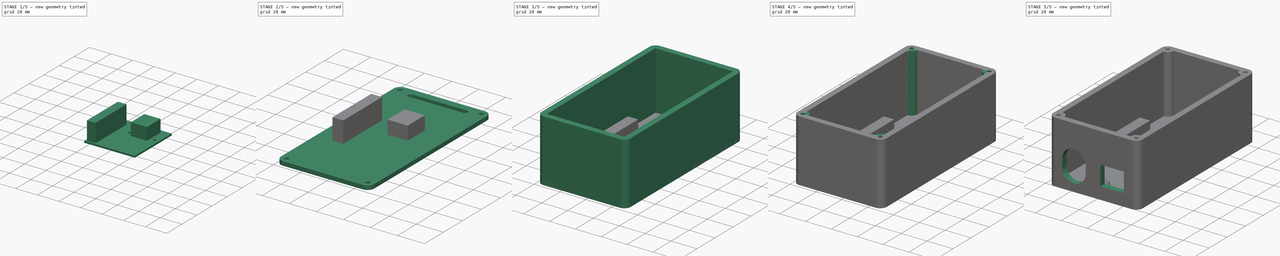
[diagram: build sequence overview — one tinted view per stage of 5, left to right]
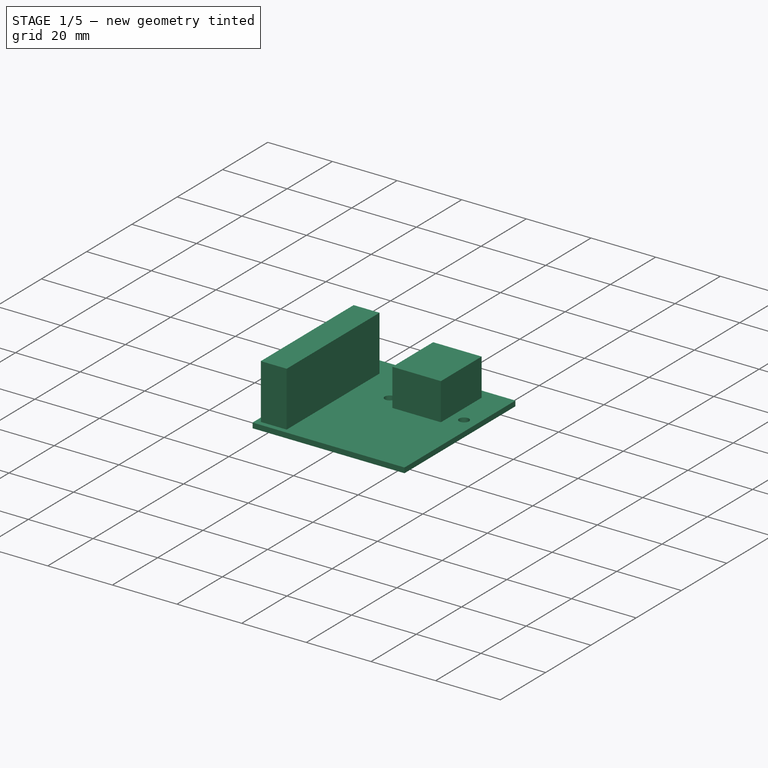
[diagram: stage 1 of 5 — iso view after this stage's code; geometry added in this stage tinted green]
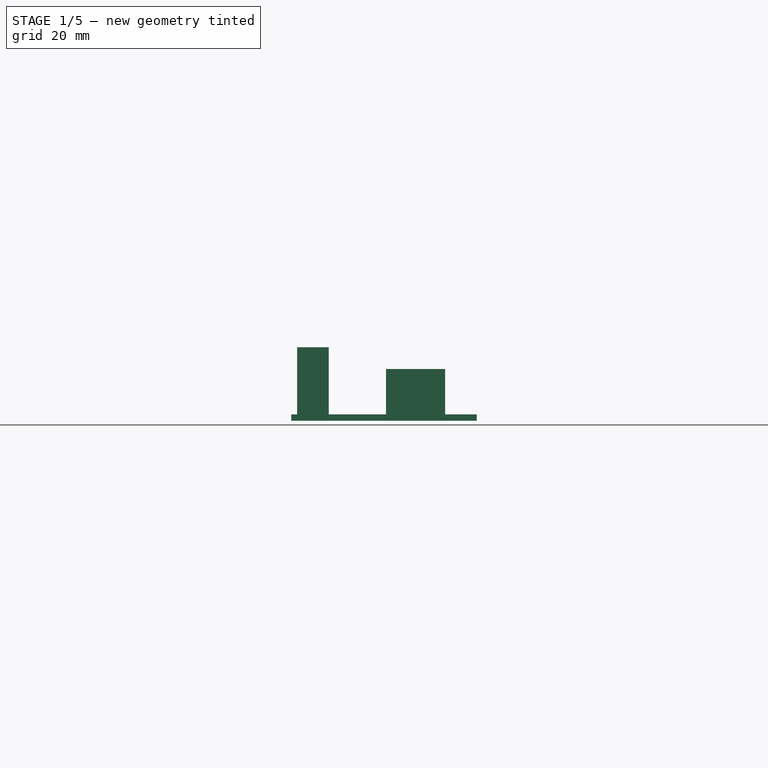
[diagram: stage 1 of 5 — front view after this stage's code; geometry added in this stage tinted green]
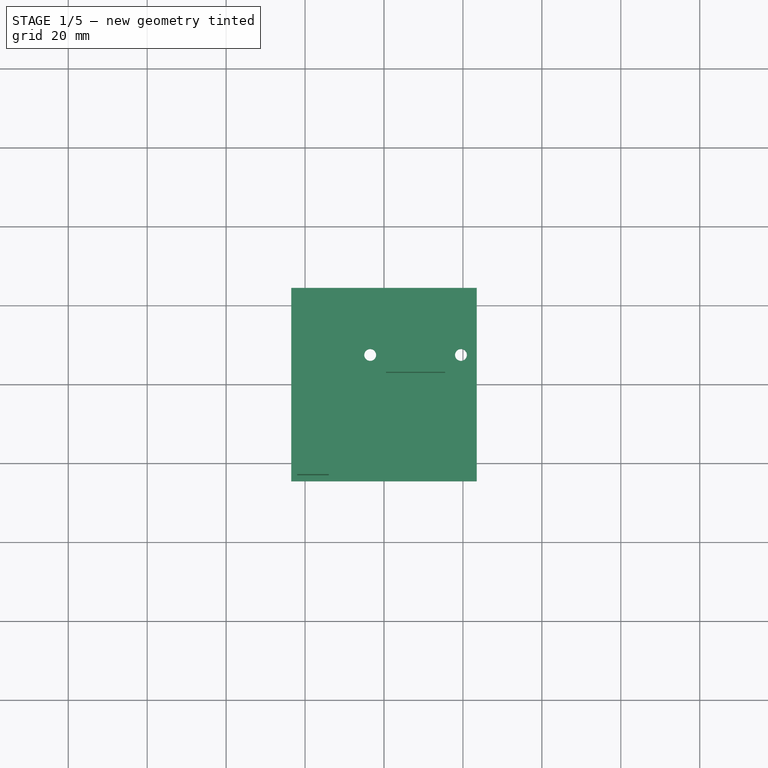
[diagram: stage 1 of 5 — top view after this stage's code; geometry added in this stage tinted green]
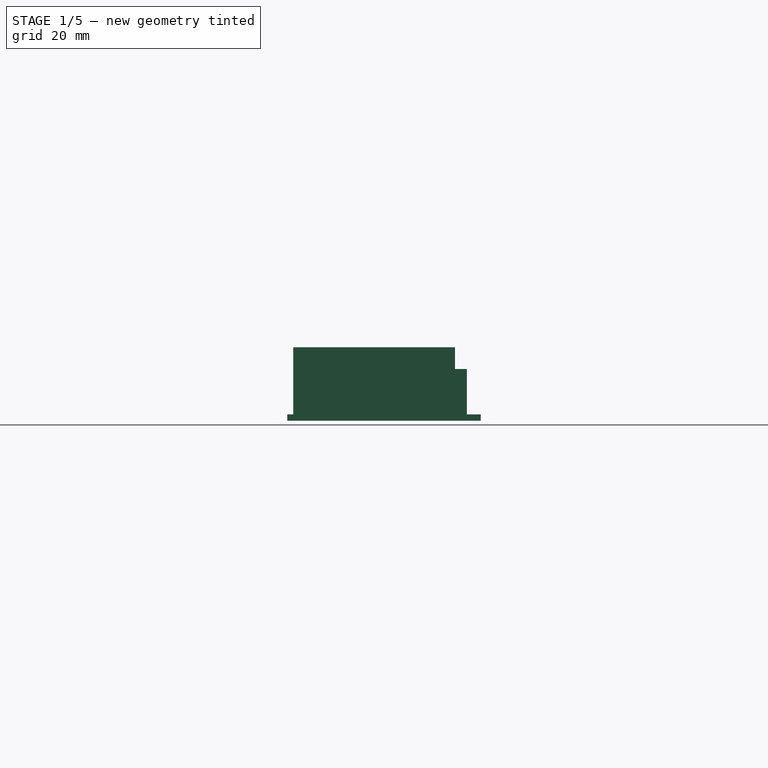
[diagram: stage 1 of 5 — right view after this stage's code; geometry added in this stage tinted green]
FCSTD DOCUMENT  (FreeCAD 0.20R29603 (Git))
Label: Olimex_ESP32_POE_ISO_iot_case
License: All rights reserved
LicenseURL: http://en.wikipedia.org/wiki/All_rights_reserved
objects: PartDesign::Plane×20, Sketcher::SketchObject×17, PartDesign::CoordinateSystem×11, PartDesign::Pocket×9, PartDesign::Pad×8, PartDesign::Point×6, PartDesign::Body×4, App::Part×4, App::DocumentObjectGroup×3, App::Link×3, PartDesign::AdditiveCone×3, App::FeaturePython×1
note: 98 computed .brp shape members not serialized (recipe doc carries the construction recipe); baked Part::Feature solids carry a one-line shape summary decoded from their .brp

FEATURE [PartDesign::Plane] DatumPlane016  label="Olimex Breakout Board Bottom"
  Length = 60
  MapMode = 5
  ResizeMode = 0
  Support = -> [XY_Plane007]
  Width = 60
FEATURE [Sketcher::SketchObject] Sketch011
  FullyConstrained = true
  MapMode = 5
  Support = -> [DatumPlane016]
  sketch-geometry (4):
    g0: LineSegment StartX=-23.5 StartY=24.5 StartZ=0 EndX=23.5 EndY=24.5 EndZ=0
    g1: LineSegment StartX=23.5 StartY=24.5 StartZ=0 EndX=23.5 EndY=-24.5 EndZ=0
    g2: LineSegment StartX=23.5 StartY=-24.5 StartZ=0 EndX=-23.5 EndY=-24.5 EndZ=0
    g3: LineSegment StartX=-23.5 StartY=-24.5 StartZ=0 EndX=-23.5 EndY=24.5 EndZ=0
  constraints (10):
    c: Coincident(g0,g1)
    c: Coincident(g1,g2)
    c: Coincident(g2,g3)
    c: Coincident(g3,g0)
    c: Horizontal(g2)
    c: Vertical(g3)
    c: DistanceX(g0,g0) = 47
    c: DistanceY(g1,g1) = 49
    c: Symmetric(g0,g0,g-2)
    c: Symmetric(g0,g1,g-1)
FEATURE [PartDesign::Plane] DatumPlane017  label="Olimex Breakout Board Top"
  AttachmentOffset = pos=(0,0,1.6) rot=(0,0,1;0rad)
  Length = 60
  MapMode = 5
  Placement = pos=(0,0,1.6) rot=(0,0,1;0rad)
  ResizeMode = 0
  Support = -> [DatumPlane016]
  Width = 60
FEATURE [PartDesign::Pad] Pad005  label="Olimex Breakout Board PCB"
  Direction = (0,0,1)
  Length = 10
  Length2 = 10
  Profile = -> Sketch011
  ReferenceAxis = -> Sketch011 [N_Axis]
  Type = 3
  UpToFace = -> DatumPlane017
FEATURE [Sketcher::SketchObject] Sketch012
  ExternalGeometry = -> [Pad005]
  FullyConstrained = true
  MapMode = 5
  Placement = pos=(0,0,1.6) rot=(0,0,1;0rad)
  Support = -> [DatumPlane017]
  sketch-geometry (3):
    g0: Circle CenterX=-3.5 CenterY=7.5 CenterZ=0 NormalX=0 NormalY=0 NormalZ=1 AngleXU=0 Radius=1.5
    g1: Circle CenterX=19.5 CenterY=7.5 CenterZ=0 NormalX=0 NormalY=0 NormalZ=1 AngleXU=0 Radius=1.5
    g2: LineSegment StartX=-3.5 StartY=7.5 StartZ=0 EndX=19.5 EndY=7.5 EndZ=0
  constraints (8):
    c: Equal(g0,g1)
    c: Coincident(g2,g0)
    c: Coincident(g2,g1)
    c: Horizontal(g2)
    c: DistanceY(g1,g-5) = 17
    c: DistanceX(g1,g-5) = 4
    c: DistanceX(g2,g2) = 23
    c: Diameter(g0) = 3
FEATURE [PartDesign::Pocket] Pocket006  label="Olimex Breakout Board Mounting Holes"
  BaseFeature = -> Pad005
  Direction = (0,0,-1)
  Length = 0
  Length2 = 5
  Profile = -> Sketch012
  ReferenceAxis = -> Sketch012 [N_Axis]
  Type = 3
  UpToFace = -> DatumPlane016
FEATURE [PartDesign::Body] Lid_Body  label="Lid Body"
  Group = -> [DatumPlane,DatumPlane001,Sketch,Pad,Sketch001,Pocket,Local_CS,Sketch014,Pocket008]
  Origin = -> Origin004
  Tip = -> Pocket008
FEATURE [App::Part] Lid
  Group = -> [Lid_Body,Lid_Lower_Right_Mounting_Hole_Bottom]
  Origin = -> Origin002
FEATURE [PartDesign::Plane] DatumPlane018  label="Olimex Breakout Board RJ45 Top"
  AttachmentOffset = pos=(0,0,11.5) rot=(0,0,1;0rad)
  Length = 60
  MapMode = 5
  Placement = pos=(0,0,13.1) rot=(0,0,1;0rad)
  ResizeMode = 0
  Support = -> [DatumPlane017]
  Width = 60
FEATURE [PartDesign::Plane] DatumPlane019  label="Olimex Breakout Board Pin Header Top"
  AttachmentOffset = pos=(0,0,17) rot=(0,0,1;0rad)
  Length = 60
  MapMode = 5
  Placement = pos=(0,0,18.6) rot=(0,0,1;0rad)
  ResizeMode = 0
  Support = -> [DatumPlane017]
  Width = 60
FEATURE [Sketcher::SketchObject] Sketch015
  FullyConstrained = true
  MapMode = 5
  Placement = pos=(0,0,1.6) rot=(0,0,1;0rad)
  Support = -> [DatumPlane017]
  sketch-geometry (4):
    g0: LineSegment StartX=0.5 StartY=21 StartZ=0 EndX=15.5 EndY=21 EndZ=0
    g1: LineSegment StartX=15.5 StartY=21 StartZ=0 EndX=15.5 EndY=3 EndZ=0
    g2: LineSegment StartX=15.5 StartY=3 StartZ=0 EndX=0.5 EndY=3 EndZ=0
    g3: LineSegment StartX=0.5 StartY=3 StartZ=0 EndX=0.5 EndY=21 EndZ=0
  constraints (12):
    c: Coincident(g0,g1)
    c: Coincident(g1,g2)
    c: Coincident(g2,g3)
    c: Coincident(g3,g0)
    c: Horizontal(g0)
    c: Horizontal(g2)
    c: Vertical(g1)
    c: Vertical(g3)
    c: DistanceX(g0,g0) = 15
    c: DistanceY(g1,g1) = 18
    c: DistanceX(g-1,g2) = 0.5
    c: DistanceY(g-1,g2) = 3
FEATURE [PartDesign::Pad] Pad006  label="Olimex Breakout Board RJ45"
  BaseFeature = -> Pocket006
  Direction = (0,0,1)
  Length = 10
  Length2 = 10
  Profile = -> Sketch015
  ReferenceAxis = -> Sketch015 [N_Axis]
  Type = 3
  UpToFace = -> DatumPlane018 [Plane]
FEATURE [Sketcher::SketchObject] Sketch016
  FullyConstrained = true
  MapMode = 5
  Placement = pos=(0,0,1.6) rot=(0,0,1;0rad)
  Support = -> [DatumPlane017]
  sketch-geometry (4):
    g0: LineSegment StartX=-22 StartY=18 StartZ=0 EndX=-14 EndY=18 EndZ=0
    g1: LineSegment StartX=-14 StartY=18 StartZ=0 EndX=-14 EndY=-23 EndZ=0
    g2: LineSegment StartX=-14 StartY=-23 StartZ=0 EndX=-22 EndY=-23 EndZ=0
    g3: LineSegment StartX=-22 StartY=-23 StartZ=0 EndX=-22 EndY=18 EndZ=0
  constraints (12):
    c: Coincident(g0,g1)
    c: Coincident(g1,g2)
    c: Coincident(g2,g3)
    c: Coincident(g3,g0)
    c: Horizontal(g0)
    c: Horizontal(g2)
    c: Vertical(g1)
    c: Vertical(g3)
    c: DistanceX(g0,g0) = 8
    c: DistanceY(g3,g3) = 41
    c: DistanceY(g1,g-1) = 23
    c: DistanceX(g1,g-1) = 14
FEATURE [PartDesign::Pad] Pad007  label="Olimex Breakout Board Pin Header"
  BaseFeature = -> Pad006
  Direction = (0,0,1)
  Length = 10
  Length2 = 10
  Profile = -> Sketch016
  ReferenceAxis = -> Sketch016 [N_Axis]
  Type = 3
  UpToFace = -> DatumPlane019 [Plane]
FEATURE [PartDesign::Body] Body  label="Olimex Breakout Board Body"
  Group = -> [Sketch011,DatumPlane016,DatumPlane017,Pad005,Sketch012,Pocket006,DatumPlane018,Sketch015,Pad006,DatumPlane019,Sketch016,Pad007]
  Origin = -> Origin007
  Placement = pos=(-8,14.2,11) rot=(0,0,1;0rad)
  Tip = -> Pad007
FEATURE [App::Part] Olimex_ESP32_POE_ISO  label="Olimex ESP32-POE-ISO"
  Group = -> [PCB,LCS_1,Body]
  Origin = -> Origin005
FEATURE [App::DocumentObjectGroup] Parts
  Group = -> [Box,Lid,Olimex_ESP32_POE_ISO]
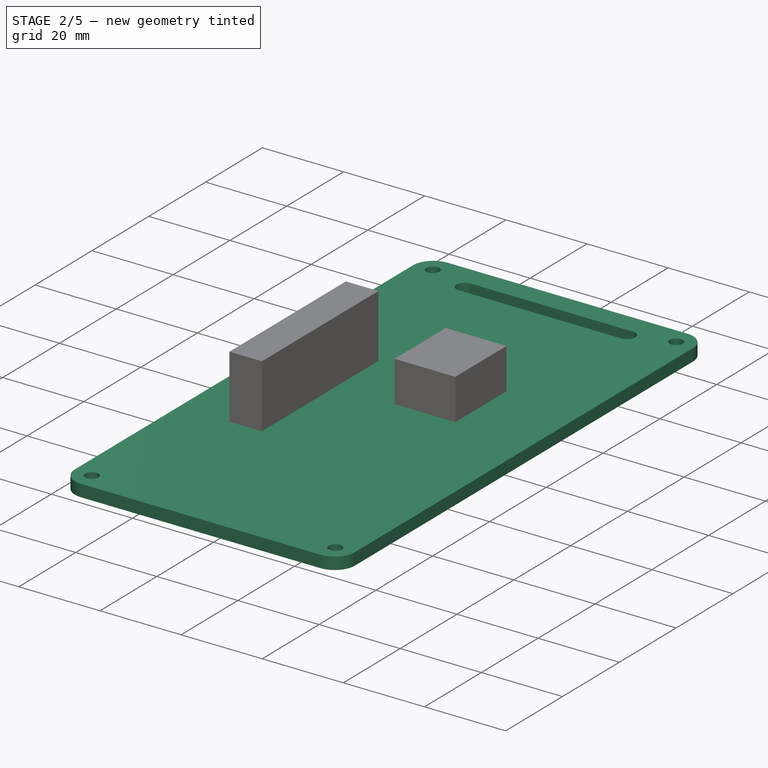
[diagram: stage 2 of 5 — iso view after this stage's code; geometry added in this stage tinted green]
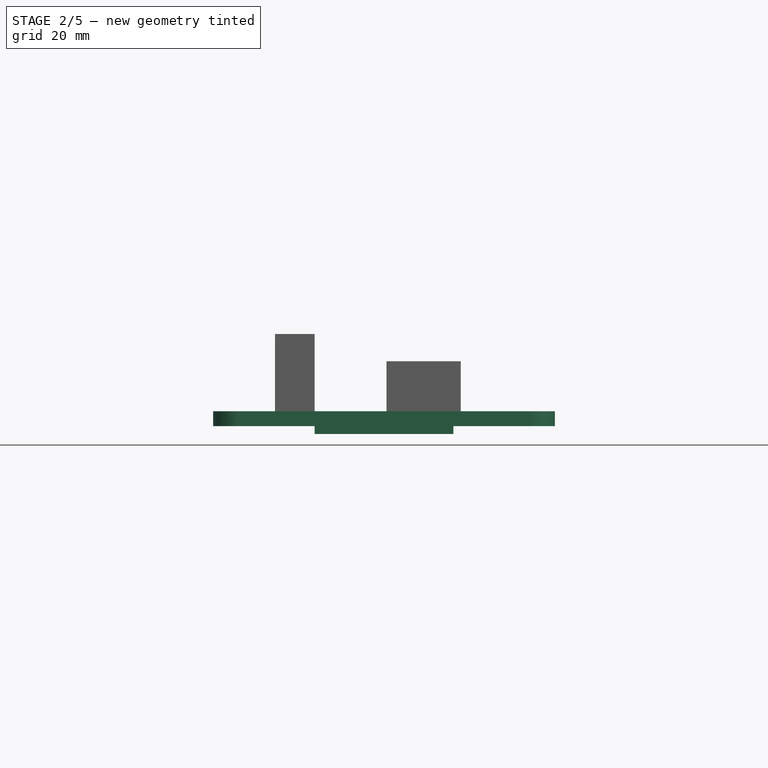
[diagram: stage 2 of 5 — front view after this stage's code; geometry added in this stage tinted green]
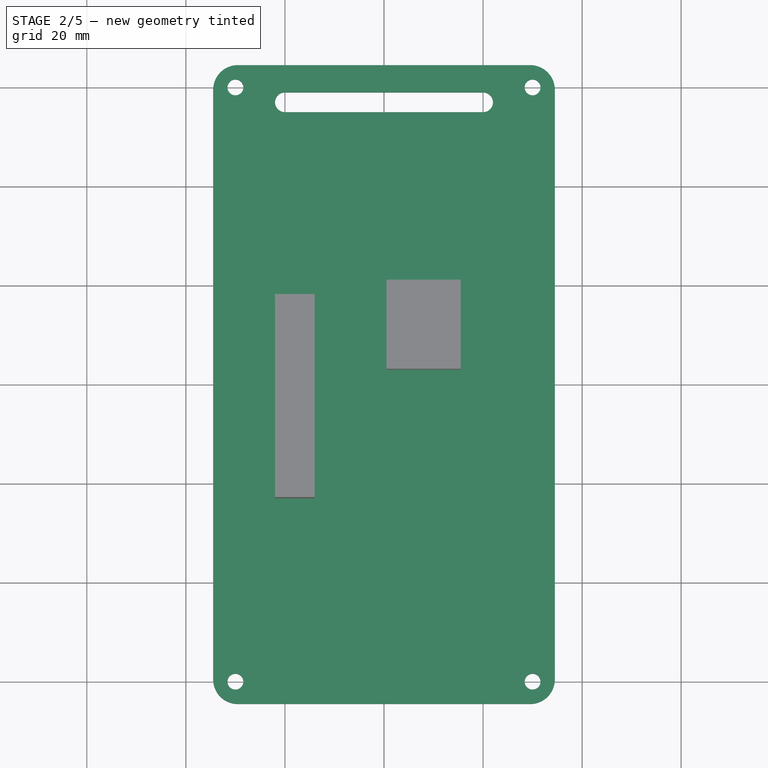
[diagram: stage 2 of 5 — top view after this stage's code; geometry added in this stage tinted green]
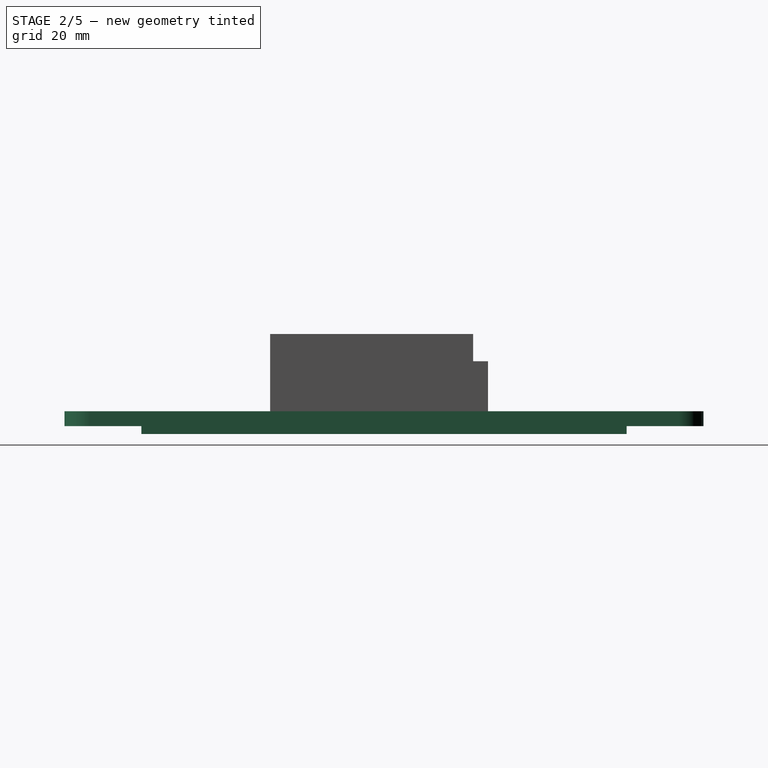
[diagram: stage 2 of 5 — right view after this stage's code; geometry added in this stage tinted green]
FEATURE [PartDesign::CoordinateSystem] LCS_Origin
  AttacherType = Attacher::AttachEngine3D
  MapMode = 2
  Support = -> [X_Axis]
FEATURE [App::DocumentObjectGroup] Constraints
FEATURE [App::FeaturePython] Variables  # WARN: FeaturePython — macro-defined, semantics opaque (R4)
  Type = App::PropertyContainer
  base_thickness = 3
  box_mounting_hole_depth = 10
  box_mounting_hole_diameter = 3.1
  corner_radius = 5
  inner_depth = 45
  inner_height = 120
  inner_width = 60
  lid_mounting_hole_diameter = 3.2
  lid_thickness = 3
  wall_thickness = 4.5
FEATURE [App::DocumentObjectGroup] Configurations
FEATURE [PartDesign::CoordinateSystem] LCS_0
  AttacherType = Attacher::AttachEngine3D
  MapMode = 2
  Support = -> [X_Axis001]
FEATURE [PartDesign::CoordinateSystem] LCS_0002
  AttacherType = Attacher::AttachEngine3D
  MapMode = 2
  Support = -> [X_Axis003]
FEATURE [PartDesign::Plane] DatumPlane  label="Lid Panel Bottom"
  Length = 87.869
  MapMode = 5
  ResizeMode = 0
  Support = -> [XY_Plane004]
  Width = 147.869
FEATURE [PartDesign::Plane] DatumPlane001  label="Lid Panel Top"
  AttachmentOffset = pos=(0,0,3) rot=(0,0,1;0rad)
  Length = 87.869
  MapMode = 5
  Placement = pos=(0,0,3) rot=(0,0,1;0rad)
  ResizeMode = 0
  Support = -> [XY_Plane004]
  Width = 147.869
  expr: .AttachmentOffset.Base.z = Variables.lid_thickness
FEATURE [Sketcher::SketchObject] Sketch
  FullyConstrained = true
  MapMode = 5
  Support = -> [DatumPlane]
  expr: .Constraints.height = Variables.inner_height + 2 * Variables.wall_thickness
  expr: .Constraints.width = <<Variables>>.inner_width + 2 * Variables.wall_thickness
  expr: Constraints[29] = Variables.corner_radius
  sketch-geometry (12):
    g0: LineSegment StartX=-34.5 StartY=64.5 StartZ=0 EndX=34.5 EndY=64.5 EndZ=0
    g1: LineSegment StartX=34.5 StartY=64.5 StartZ=0 EndX=34.5 EndY=-64.5 EndZ=0
    g2: LineSegment StartX=34.5 StartY=-64.5 StartZ=0 EndX=-34.5 EndY=-64.5 EndZ=0
    g3: LineSegment StartX=-34.5 StartY=-64.5 StartZ=0 EndX=-34.5 EndY=64.5 EndZ=0
    g4: LineSegment StartX=-29.5 StartY=64.5 StartZ=0 EndX=29.5 EndY=64.5 EndZ=0
    g5: LineSegment StartX=34.5 StartY=59.5 StartZ=0 EndX=34.5 EndY=-59.5 EndZ=0
    g6: LineSegment StartX=29.5 StartY=-64.5 StartZ=0 EndX=-29.5 EndY=-64.5 EndZ=0
    g7: LineSegment StartX=-34.5 StartY=-59.5 StartZ=0 EndX=-34.5 EndY=59.5 EndZ=0
    g8: ArcOfCircle CenterX=-29.5 CenterY=59.5 CenterZ=0 NormalX=0 NormalY=0 NormalZ=1 AngleXU=0 Radius=5 StartAngle=1.5708 EndAngle=3.14159
    g9: ArcOfCircle CenterX=-29.5 CenterY=-59.5 CenterZ=0 NormalX=0 NormalY=0 NormalZ=1 AngleXU=0 Radius=5 StartAngle=3.14159 EndAngle=4.71239
    g10: ArcOfCircle CenterX=29.5 CenterY=-59.5 CenterZ=0 NormalX=0 NormalY=0 NormalZ=1 AngleXU=0 Radius=5 StartAngle=4.71239 EndAngle=6.28319
    g11: ArcOfCircle CenterX=29.5 CenterY=59.5 CenterZ=0 NormalX=0 NormalY=0 NormalZ=1 AngleXU=0 Radius=5 StartAngle=5e-16 EndAngle=1.5708
  constraints (30):
    c: Coincident(g0,g1)
    c: Coincident(g1,g2)
    c: Coincident(g2,g3)
    c: Coincident(g3,g0)
    c: Horizontal(g2)
    c: Vertical(g3)
    c: Symmetric(g0,g0,g-2)
    c: Symmetric(g0,g1,g-1)
    c: DistanceX(g0,g0) = 69  'width'
    c: DistanceY(g1,g1) = 129  'height'
    c: Horizontal(g4)
    c: Horizontal(g6)
    c: Vertical(g5)
    c: Vertical(g7)
    c: Tangent(g4,g8) = 1.5708
    c: Tangent(g7,g8) = 1.5708
    c: Tangent(g7,g9) = 1.5708
    c: Tangent(g6,g9) = 1.5708
    c: Tangent(g6,g10) = 1.5708
    c: Tangent(g5,g10) = 1.5708
    c: Tangent(g5,g11) = 1.5708
    c: Tangent(g4,g11) = 1.5708
    c: PointOnObject(g4,g0)
    c: PointOnObject(g7,g3)
    c: PointOnObject(g5,g1)
    c: PointOnObject(g6,g2)
    c: Equal(g8,g9)
    c: Equal(g9,g10)
    c: Equal(g10,g11)
    c: Radius(g9) = 5
FEATURE [PartDesign::Pad] Pad  label="Lid Panel"
  Direction = (0,0,1)
  Length = 10
  Length2 = 10
  Profile = -> Sketch
  ReferenceAxis = -> Sketch [N_Axis]
  Type = 3
  UpToFace = -> DatumPlane001 [Plane]
FEATURE [Sketcher::SketchObject] Sketch001
  FullyConstrained = true
  MapMode = 5
  Placement = pos=(0,0,3) rot=(0,0,1;0rad)
  Support = -> [DatumPlane001]
  expr: Constraints[17] = Variables.lid_mounting_hole_diameter
  expr: Constraints[8] = Variables.inner_width
  expr: Constraints[9] = Variables.inner_height
  sketch-geometry (8):
    g0: LineSegment StartX=-30 StartY=60 StartZ=0 EndX=30 EndY=60 EndZ=0
    g1: LineSegment StartX=30 StartY=60 StartZ=0 EndX=30 EndY=-60 EndZ=0
    g2: LineSegment StartX=30 StartY=-60 StartZ=0 EndX=-30 EndY=-60 EndZ=0
    g3: LineSegment StartX=-30 StartY=-60 StartZ=0 EndX=-30 EndY=60 EndZ=0
    g4: Circle CenterX=-30 CenterY=60 CenterZ=0 NormalX=0 NormalY=0 NormalZ=1 AngleXU=0 Radius=1.6
    g5: Circle CenterX=30 CenterY=60 CenterZ=0 NormalX=0 NormalY=0 NormalZ=1 AngleXU=0 Radius=1.6
    g6: Circle CenterX=30 CenterY=-60 CenterZ=0 NormalX=0 NormalY=0 NormalZ=1 AngleXU=0 Radius=1.6
    g7: Circle CenterX=-30 CenterY=-60 CenterZ=0 NormalX=0 NormalY=0 NormalZ=1 AngleXU=0 Radius=1.6
  constraints (18):
    c: Coincident(g0,g1)
    c: Coincident(g1,g2)
    c: Coincident(g2,g3)
    c: Coincident(g3,g0)
    c: Horizontal(g2)
    c: Vertical(g3)
    c: Symmetric(g0,g0,g-2)
    c: Symmetric(g0,g1,g-1)
    c: DistanceX(g0,g0) = 60
    c: DistanceY(g1,g1) = 120
    c: Coincident(g4,g0)
    c: Coincident(g5,g0)
    c: Coincident(g6,g1)
    c: Coincident(g7,g2)
    c: Equal(g4,g5)
    c: Equal(g5,g6)
    c: Equal(g6,g7)
    c: Diameter(g7) = 3.2
FEATURE [PartDesign::Pocket] Pocket  label="Lid Mounting Holes"
  BaseFeature = -> Pad
  Direction = (0,0,-1)
  Length = 0
  Length2 = 5
  Profile = -> Sketch001
  ReferenceAxis = -> Sketch001 [N_Axis]
  Type = 3
  UpToFace = -> DatumPlane [Plane]
FEATURE [PartDesign::CoordinateSystem] Local_CS  label="Lid Body Lower Left Mounting Hole Bottom"
  AttacherType = Attacher::AttachEngine3D
  MapMode = 45
  Placement = pos=(-30,-60,0) rot=(0,0,-1;8e-05rad)
  Support = -> [Pocket]
FEATURE [PartDesign::CoordinateSystem] Lid_Lower_Right_Mounting_Hole_Bottom  label="Lid Lower Left Mounting Hole Bottom"
  AttacherType = Attacher::AttachEngine3D
  MapMode = 5
  Placement = pos=(-30,-60,0) rot=(0,0,-1;8e-05rad)
  Support = -> [Local_CS]
FEATURE [PartDesign::CoordinateSystem] Local_CS001  label="Box Body Lower Left Mounting Hole Top"
  AttacherType = Attacher::AttachEngine3D
  MapMode = 45
  Placement = pos=(-30,-60,48) rot=(0,0,1;0rad)
  Support = -> [Pocket002]
FEATURE [PartDesign::CoordinateSystem] Box_Lower_Left_Mounting_Hole_Top  label="Box Lower Left Mounting Hole Top"
  AttacherType = Attacher::AttachEngine3D
  MapMode = 5
  Placement = pos=(-30,-60,48) rot=(0,0,1;0rad)
  Support = -> [Local_CS001]
FEATURE [App::Link] Box_Ass  label="Box Ass"
  AssemblyType = Part::Link
  AttachedBy = #LCS_0
  AttachedTo = Parent Assembly#LCS_Origin
  LinkedObject = -> Box
  SolverId = Asm4EE
  expr: Placement = LCS_Origin.Placement * AttachmentOffset * LCS_0.Placement ^ -1
FEATURE [App::Link] Lid_Ass  label="Lid Ass"
  AssemblyType = Part::Link
  AttachedBy = #Lid_Lower_Right_Mounting_Hole_Bottom
  AttachedTo = Box_Ass#Box_Lower_Left_Mounting_Hole_Top
  LinkPlacement = pos=(-0.00482131,0.00241041,48) rot=(0,0,1;8e-05rad)
  LinkedObject = -> Lid
  Placement = pos=(-0.00482131,0.00241041,48) rot=(0,0,1;8e-05rad)
  SolverId = Asm4EE
  expr: Placement = Box_Ass.Placement * Box_Lower_Left_Mounting_Hole_Top.Placement * AttachmentOffset * Lid_Lower_Right_Mounting_Hole_Bottom.Placement ^ -1
FEATURE [PartDesign::Plane] DatumPlane006  label="Box Body Front Inner"
  AttachmentOffset = pos=(0,0,60) rot=(0,0,1;0rad)
  Length = 83.1944
  MapMode = 5
  Placement = pos=(0,-60,-1.33e-14) rot=(1,0,0;1.5708rad)
  ResizeMode = 0
  Support = -> [XZ_Plane003]
  Width = 87.1944
  expr: .AttachmentOffset.Base.z = Variables.inner_height / 2
FEATURE [PartDesign::Plane] DatumPlane007  label="Box Body Rear Inner"
  AttachmentOffset = pos=(0,0,-60) rot=(0,0,1;0rad)
  Length = 83.1944
  MapMode = 5
  Placement = pos=(0,60,1.33e-14) rot=(1,0,0;1.5708rad)
  ResizeMode = 0
  Support = -> [XZ_Plane003]
  Width = 87.1944
  expr: .AttachmentOffset.Base.z = -Variables.inner_height / 2
FEATURE [PartDesign::Plane] DatumPlane008  label="Box Body Front Outer"
  AttachmentOffset = pos=(0,0,4.5) rot=(0,0,1;0rad)
  Length = 83.1944
  MapMode = 5
  Placement = pos=(0,-64.5,-1.43e-14) rot=(1,0,0;1.5708rad)
  ResizeMode = 0
  Support = -> [DatumPlane006]
  Width = 87.1944
  expr: .AttachmentOffset.Base.z = Variables.wall_thickness
FEATURE [PartDesign::Plane] DatumPlane009  label="Box Body Rear Outer"
  AttachmentOffset = pos=(0,0,-4.5) rot=(0,0,1;0rad)
  Length = 83.1944
  MapMode = 5
  Placement = pos=(0,64.5,1.43e-14) rot=(1,0,0;1.5708rad)
  ResizeMode = 0
  Support = -> [DatumPlane007]
  Width = 87.1944
  expr: .AttachmentOffset.Base.z = -Variables.wall_thickness
FEATURE [PartDesign::Plane] DatumPlane010  label="Box Body Right Inner"
  AttachmentOffset = pos=(0,0,30) rot=(0,0,1;0rad)
  Length = 148.408
  MapMode = 5
  Placement = pos=(30,-6.7e-15,6.7e-15) rot=(0.57735,0.57735,0.57735;2.0944rad)
  ResizeMode = 0
  Support = -> [YZ_Plane003]
  Width = 92.4082
  expr: .AttachmentOffset.Base.z = Variables.inner_width / 2
FEATURE [PartDesign::Plane] DatumPlane011  label="Box Body Right Outer"
  AttachmentOffset = pos=(0,0,4.5) rot=(0,0,1;0rad)
  Length = 148.408
  MapMode = 5
  Placement = pos=(34.5,-7.2e-15,7.2e-15) rot=(0.57735,0.57735,0.57735;2.0944rad)
  ResizeMode = 0
  Support = -> [DatumPlane010]
  Width = 92.4082
  expr: .AttachmentOffset.Base.z = Variables.wall_thickness
FEATURE [PartDesign::Plane] DatumPlane012  label="Box Body Left Inner"
  AttachmentOffset = pos=(0,0,-30) rot=(0,0,1;0rad)
  Length = 148.408
  MapMode = 5
  Placement = pos=(-30,6.7e-15,-6.7e-15) rot=(0.57735,0.57735,0.57735;2.0944rad)
  ResizeMode = 0
  Support = -> [YZ_Plane003]
  Width = 92.4082
  expr: .AttachmentOffset.Base.z = -Variables.inner_width / 2
FEATURE [PartDesign::Plane] DatumPlane013  label="Box Body Left Outer"
  AttachmentOffset = pos=(0,0,-4.5) rot=(0,0,1;0rad)
  Length = 148.408
  MapMode = 5
  Placement = pos=(-34.5,7.2e-15,-7.2e-15) rot=(0.57735,0.57735,0.57735;2.0944rad)
  ResizeMode = 0
  Support = -> [DatumPlane012]
  Width = 92.4082
  expr: .AttachmentOffset.Base.z = -Variables.wall_thickness
FEATURE [Sketcher::SketchObject] Sketch006
  FullyConstrained = true
  MapMode = 5
  Support = -> [XY_Plane006]
  sketch-geometry (4):
    g0: LineSegment StartX=-14 StartY=49 StartZ=0 EndX=14 EndY=49 EndZ=0
    g1: LineSegment StartX=14 StartY=49 StartZ=0 EndX=14 EndY=-49 EndZ=0
    g2: LineSegment StartX=14 StartY=-49 StartZ=0 EndX=-14 EndY=-49 EndZ=0
    g3: LineSegment StartX=-14 StartY=-49 StartZ=0 EndX=-14 EndY=49 EndZ=0
  constraints (10):
    c: Coincident(g0,g1)
    c: Coincident(g1,g2)
    c: Coincident(g2,g3)
    c: Coincident(g3,g0)
    c: Horizontal(g2)
    c: Vertical(g3)
    c: Symmetric(g0,g0,g-2)
    c: Symmetric(g0,g1,g-1)
    c: DistanceX(g0,g0) = 28
    c: DistanceY(g3,g3) = 98
FEATURE [PartDesign::Pad] Pad003  label="Olimex ESP32-POE-ISO PCB"
  Direction = (0,0,1)
  Length = 1.6
  Length2 = 10
  Profile = -> Sketch006
  ReferenceAxis = -> Sketch006 [N_Axis]
  Reversed = true
  Type = 0
FEATURE [PartDesign::Body] Box_Body  label="Box Body"
  Group = -> [LCS_0002,DatumPlane002,DatumPlane003,DatumPlane004,Sketch002,Pad001,Sketch003,Pocket001,Sketch004,Pad002,Sketch005,DatumPlane005,Pocket002,Local_CS001,DatumPlane006,DatumPlane008,DatumPlane007,DatumPlane009,DatumPlane010,DatumPlane011,DatumPlane012,DatumPlane013,DatumPoint,DatumPoint001,DatumPoint002,DatumPlane015,Sketch010,Cone,Cone001,Cone002,DatumPlane014,DatumPoint003,DatumPoint004,+7 more]
  Origin = -> Origin003
  Tip = -> Pocket002
FEATURE [App::Part] Box
  Group = -> [LCS_0,Box_Body,Box_Lower_Left_Mounting_Hole_Top,Box_Body_Olimex_Board_Lower_Mounting_Hole_Position_Top_LCS]
  Origin = -> Origin001
FEATURE [Sketcher::SketchObject] Sketch014
  FullyConstrained = true
  MapMode = 5
  Placement = pos=(0,0,3) rot=(0,0,1;0rad)
  Support = -> [DatumPlane001]
  sketch-geometry (4):
    g0: ArcOfCircle CenterX=-20 CenterY=57 CenterZ=0 NormalX=0 NormalY=0 NormalZ=1 AngleXU=0 Radius=2 StartAngle=1.5708 EndAngle=4.71239
    g1: ArcOfCircle CenterX=20 CenterY=57 CenterZ=0 NormalX=0 NormalY=0 NormalZ=1 AngleXU=0 Radius=2 StartAngle=4.71239 EndAngle=7.85398
    g2: LineSegment StartX=-20 StartY=55 StartZ=0 EndX=20 EndY=55 EndZ=0
    g3: LineSegment StartX=20 StartY=59 StartZ=0 EndX=-20 EndY=59 EndZ=0
  constraints (9):
    c: Tangent(g0,g2) = -1.5708
    c: Tangent(g2,g1) = -1.5708
    c: Tangent(g1,g3) = -1.5708
    c: Tangent(g3,g0) = -1.5708
    c: Equal(g0,g1)
    c: Symmetric(g0,g1,g-2)
    c: Radius(g1) = 2
    c: DistanceX(g0,g1) = 40
    c: DistanceY(g-1,g0) = 57
FEATURE [PartDesign::Pocket] Pocket008  label="Lid Body Cooling Slot"
  BaseFeature = -> Pocket
  Direction = (0,0,-1)
  Length = 0
  Length2 = 5
  Profile = -> Sketch014
  ReferenceAxis = -> Sketch014 [N_Axis]
  Type = 3
  UpToFace = -> DatumPlane [Plane]
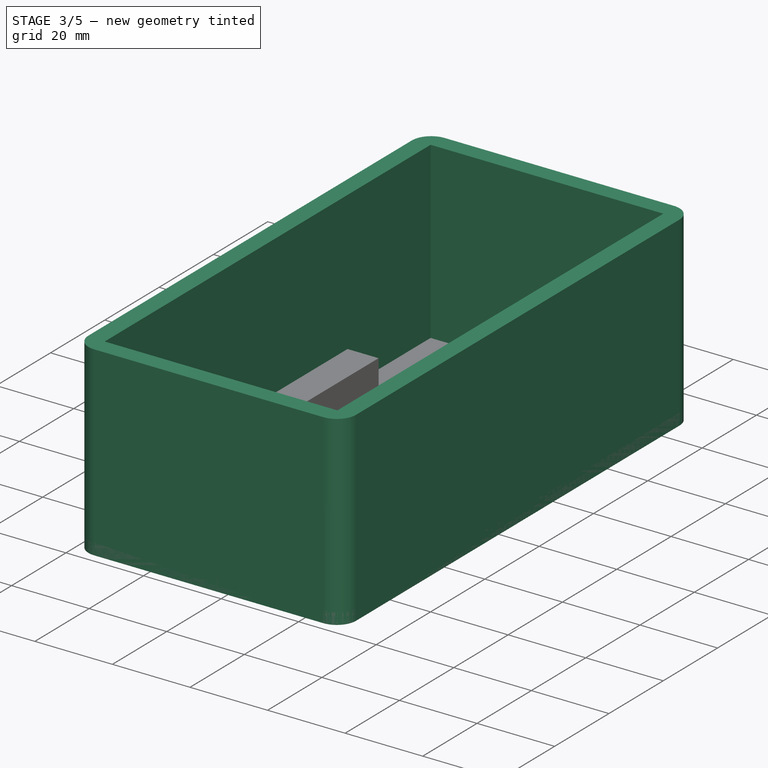
[diagram: stage 3 of 5 — iso view after this stage's code; geometry added in this stage tinted green]
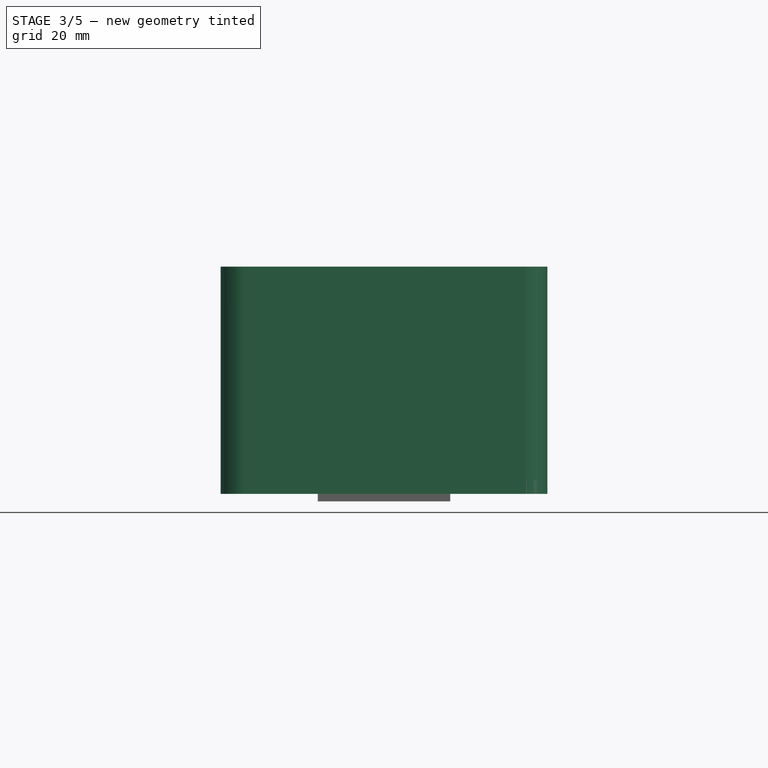
[diagram: stage 3 of 5 — front view after this stage's code; geometry added in this stage tinted green]
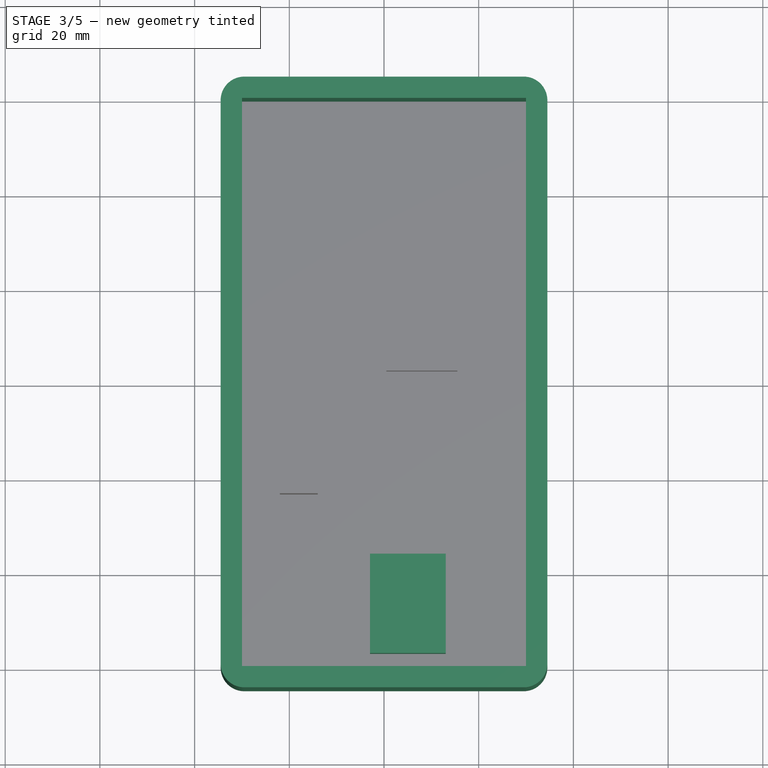
[diagram: stage 3 of 5 — top view after this stage's code; geometry added in this stage tinted green]
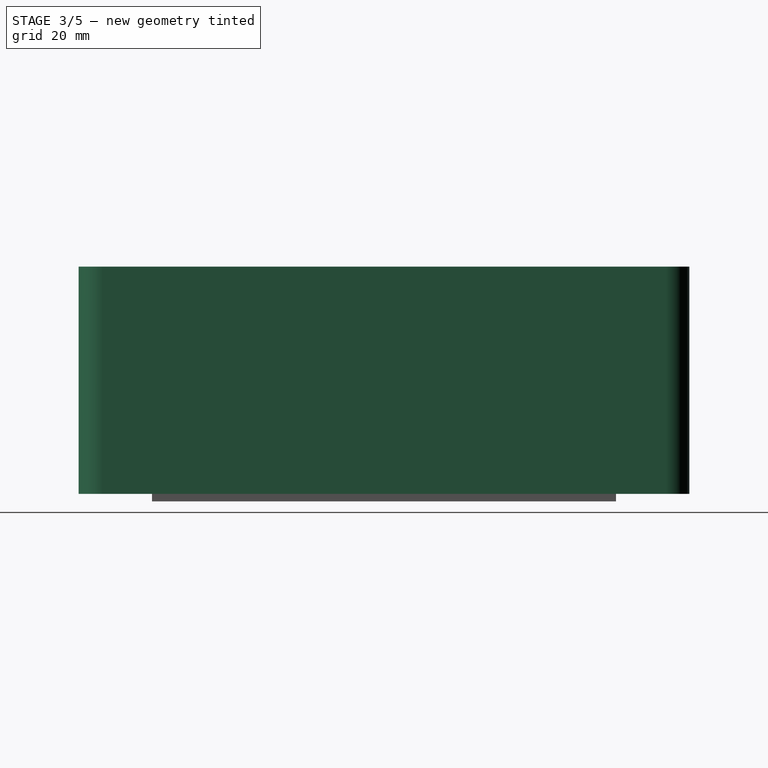
[diagram: stage 3 of 5 — right view after this stage's code; geometry added in this stage tinted green]
FEATURE [PartDesign::Plane] DatumPlane002  label="Box Body Outer Bottom"
  Length = 87.869
  MapMode = 5
  ResizeMode = 0
  Support = -> [XY_Plane003]
  Width = 147.869
FEATURE [PartDesign::Plane] DatumPlane003  label="Box Body Inner Bottom"
  AttachmentOffset = pos=(0,0,3) rot=(0,0,1;0rad)
  Length = 87.869
  MapMode = 5
  Placement = pos=(0,0,3) rot=(0,0,1;0rad)
  ResizeMode = 0
  Support = -> [XY_Plane003]
  Width = 147.869
  expr: .AttachmentOffset.Base.z = Variables.base_thickness
FEATURE [PartDesign::Plane] DatumPlane004  label="Box Body Top"
  AttachmentOffset = pos=(0,0,45) rot=(0,0,1;0rad)
  Length = 87.869
  MapMode = 5
  Placement = pos=(0,0,48) rot=(0,0,1;0rad)
  ResizeMode = 0
  Support = -> [DatumPlane003]
  Width = 147.869
  expr: .AttachmentOffset.Base.z = Variables.inner_depth
FEATURE [Sketcher::SketchObject] Sketch002
  FullyConstrained = true
  MapMode = 5
  Support = -> [DatumPlane002]
  expr: .Constraints.height = Variables.inner_height + 2 * Variables.wall_thickness
  expr: .Constraints.width = Variables.inner_width + 2 * Variables.wall_thickness
  expr: Constraints[29] = Variables.corner_radius
  sketch-geometry (12):
    g0: LineSegment StartX=-34.5 StartY=64.5 StartZ=0 EndX=34.5 EndY=64.5 EndZ=0
    g1: LineSegment StartX=34.5 StartY=64.5 StartZ=0 EndX=34.5 EndY=-64.5 EndZ=0
    g2: LineSegment StartX=34.5 StartY=-64.5 StartZ=0 EndX=-34.5 EndY=-64.5 EndZ=0
    g3: LineSegment StartX=-34.5 StartY=-64.5 StartZ=0 EndX=-34.5 EndY=64.5 EndZ=0
    g4: LineSegment StartX=-29.5 StartY=64.5 StartZ=0 EndX=29.5 EndY=64.5 EndZ=0
    g5: LineSegment StartX=34.5 StartY=59.5 StartZ=0 EndX=34.5 EndY=-59.5 EndZ=0
    g6: LineSegment StartX=29.5 StartY=-64.5 StartZ=0 EndX=-29.5 EndY=-64.5 EndZ=0
    g7: LineSegment StartX=-34.5 StartY=-59.5 StartZ=0 EndX=-34.5 EndY=59.5 EndZ=0
    g8: ArcOfCircle CenterX=-29.5 CenterY=59.5 CenterZ=0 NormalX=0 NormalY=0 NormalZ=1 AngleXU=0 Radius=5 StartAngle=1.5708 EndAngle=3.14159
    g9: ArcOfCircle CenterX=-29.5 CenterY=-59.5 CenterZ=0 NormalX=0 NormalY=0 NormalZ=1 AngleXU=0 Radius=5 StartAngle=3.14159 EndAngle=4.71239
    g10: ArcOfCircle CenterX=29.5 CenterY=-59.5 CenterZ=0 NormalX=0 NormalY=0 NormalZ=1 AngleXU=0 Radius=5 StartAngle=4.71239 EndAngle=6.28319
    g11: ArcOfCircle CenterX=29.5 CenterY=59.5 CenterZ=0 NormalX=0 NormalY=0 NormalZ=1 AngleXU=0 Radius=5 StartAngle=0 EndAngle=1.5708
  constraints (30):
    c: Coincident(g0,g1)
    c: Coincident(g1,g2)
    c: Coincident(g2,g3)
    c: Coincident(g3,g0)
    c: Horizontal(g2)
    c: Vertical(g3)
    c: Symmetric(g0,g0,g-2)
    c: Symmetric(g0,g1,g-1)
    c: DistanceX(g0,g0) = 69  'width'
    c: DistanceY(g1,g1) = 129  'height'
    c: Horizontal(g4)
    c: Horizontal(g6)
    c: Vertical(g5)
    c: Vertical(g7)
    c: Tangent(g4,g8) = 1.5708
    c: Tangent(g7,g8) = 1.5708
    c: Tangent(g7,g9) = 1.5708
    c: Tangent(g6,g9) = 1.5708
    c: Tangent(g6,g10) = 1.5708
    c: Tangent(g5,g10) = 1.5708
    c: Tangent(g4,g11) = 1.5708
    c: Tangent(g5,g11) = 1.5708
    c: Equal(g8,g9)
    c: Equal(g9,g10)
    c: Equal(g10,g11)
    c: PointOnObject(g4,g0)
    c: PointOnObject(g7,g3)
    c: PointOnObject(g5,g1)
    c: PointOnObject(g6,g2)
    c: Radius(g9) = 5
FEATURE [PartDesign::Pad] Pad001  label="Box Body Volume"
  Direction = (0,0,1)
  Length = 10
  Length2 = 10
  Profile = -> Sketch002
  ReferenceAxis = -> Sketch002 [N_Axis]
  Type = 3
  UpToFace = -> DatumPlane004 [Plane]
FEATURE [Sketcher::SketchObject] Sketch003
  FullyConstrained = true
  MapMode = 5
  Placement = pos=(0,0,48) rot=(0,0,1;0rad)
  Support = -> [DatumPlane004]
  expr: .Constraints.height = Variables.inner_height
  expr: .Constraints.width = Variables.inner_width
  sketch-geometry (8):
    g0: LineSegment StartX=-30 StartY=60 StartZ=0 EndX=30 EndY=60 EndZ=0
    g1: LineSegment StartX=30 StartY=60 StartZ=0 EndX=30 EndY=-60 EndZ=0
    g2: LineSegment StartX=30 StartY=-60 StartZ=0 EndX=-30 EndY=-60 EndZ=0
    g3: LineSegment StartX=-30 StartY=-60 StartZ=0 EndX=-30 EndY=60 EndZ=0
    g4: LineSegment StartX=-30 StartY=60 StartZ=0 EndX=30 EndY=60 EndZ=0
    g5: LineSegment StartX=30 StartY=60 StartZ=0 EndX=30 EndY=-60 EndZ=0
    g6: LineSegment StartX=30 StartY=-60 StartZ=0 EndX=-30 EndY=-60 EndZ=0
    g7: LineSegment StartX=-30 StartY=-60 StartZ=0 EndX=-30 EndY=60 EndZ=0
  constraints (20):
    c: Coincident(g0,g1)
    c: Coincident(g1,g2)
    c: Coincident(g2,g3)
    c: Coincident(g3,g0)
    c: Horizontal(g2)
    c: Vertical(g3)
    c: Symmetric(g0,g0,g-2)
    c: Symmetric(g0,g1,g-1)
    c: DistanceX(g0,g0) = 60  'width'
    c: DistanceY(g1,g1) = 120  'height'
    c: Coincident(g4,g5)
    c: Coincident(g5,g6)
    c: Coincident(g6,g7)
    c: Coincident(g7,g4)
    c: Horizontal(g4)
    c: Horizontal(g6)
    c: Vertical(g5)
    c: Vertical(g7)
    c: Coincident(g4,g0)
    c: Coincident(g5,g1)
FEATURE [PartDesign::Pocket] Pocket001  label="Box Inner Volume"
  BaseFeature = -> Pad001
  Direction = (0,0,-1)
  Length = 0
  Length2 = 5
  Profile = -> Sketch003
  ReferenceAxis = -> Sketch003 [N_Axis]
  Type = 3
  UpToFace = -> DatumPlane003
FEATURE [Sketcher::SketchObject] Sketch007
  ExternalGeometry = -> [Pad003]
  FullyConstrained = true
  MapMode = 5
  Support = -> [XY_Plane006]
  sketch-geometry (3):
    g0: Circle CenterX=-11.43 CenterY=21.67 CenterZ=0 NormalX=0 NormalY=0 NormalZ=1 AngleXU=0 Radius=1
    g1: Circle CenterX=11.43 CenterY=21.67 CenterZ=0 NormalX=0 NormalY=0 NormalZ=1 AngleXU=0 Radius=1
    g2: Circle CenterX=-6.36 CenterY=-46.27 CenterZ=0 NormalX=0 NormalY=0 NormalZ=1 AngleXU=0 Radius=1
  constraints (9):
    c: Equal(g0,g1)
    c: Equal(g1,g2)
    c: Diameter(g1) = 2
    c: Horizontal(g0,g1)
    c: DistanceY(g-6,g1) = 70.67  'y_upper'
    c: DistanceX(g-6,g2) = 7.64  'x_lower'
    c: DistanceY(g-6,g2) = 2.73  'y_lower'
    c: DistanceX(g-5,g1) = 25.43  'x_upper_right'
    c: DistanceX(g-5,g0) = 2.57  'x_upper_left'
FEATURE [PartDesign::Pocket] Pocket003  label="Olimex ESP32-POE-ISO Mounting Holes"
  BaseFeature = -> Pad003
  Direction = (0,0,-1)
  Length = 5
  Length2 = 5
  Profile = -> Sketch007
  ReferenceAxis = -> Sketch007 [N_Axis]
  Type = 1
FEATURE [Sketcher::SketchObject] Sketch008
  ExternalGeometry = -> [Pocket003]
  FullyConstrained = true
  MapMode = 5
  Support = -> [XY_Plane006]
  sketch-geometry (7):
    g0: LineSegment StartX=-2.95 StartY=-35.64 StartZ=0 EndX=13.05 EndY=-35.64 EndZ=0
    g1: LineSegment StartX=13.05 StartY=-35.64 StartZ=0 EndX=13.05 EndY=-56.64 EndZ=0
    g2: LineSegment StartX=13.05 StartY=-56.64 StartZ=0 EndX=-2.95 EndY=-56.64 EndZ=0
    g3: LineSegment StartX=-2.95 StartY=-56.64 StartZ=0 EndX=-2.95 EndY=-35.64 EndZ=0
    g4: LineSegment StartX=13.05 StartY=-35.64 StartZ=0 EndX=-2.95 EndY=-56.64 EndZ=0
    g5: LineSegment StartX=-2.95 StartY=-35.64 StartZ=0 EndX=13.05 EndY=-56.64 EndZ=0
    g6: GeomPoint X=5.05 Y=-46.14 Z=0
  constraints (18):
    c: Coincident(g0,g1)
    c: Coincident(g1,g2)
    c: Coincident(g2,g3)
    c: Coincident(g3,g0)
    c: Horizontal(g0)
    c: Horizontal(g2)
    c: Vertical(g1)
    c: Vertical(g3)
    c: Coincident(g4,g0)
    c: Coincident(g4,g2)
    c: Coincident(g5,g0)
    c: Coincident(g5,g1)
    c: PointOnObject(g6,g4)
    c: PointOnObject(g6,g5)
    c: DistanceX(g-4,g6) = 19.05
    c: DistanceY(g-5,g6) = 2.86
    c: DistanceY(g1,g1) = 21
    c: DistanceX(g2,g2) = 16  'rj45_width'
FEATURE [PartDesign::Pad] Pad004  label="Olimex ESP32-POE-ISO RJ45"
  BaseFeature = -> Pocket003
  Direction = (0,0,1)
  Length = 13
  Length2 = 10
  Profile = -> Sketch008
  ReferenceAxis = -> Sketch008 [N_Axis]
  Type = 0
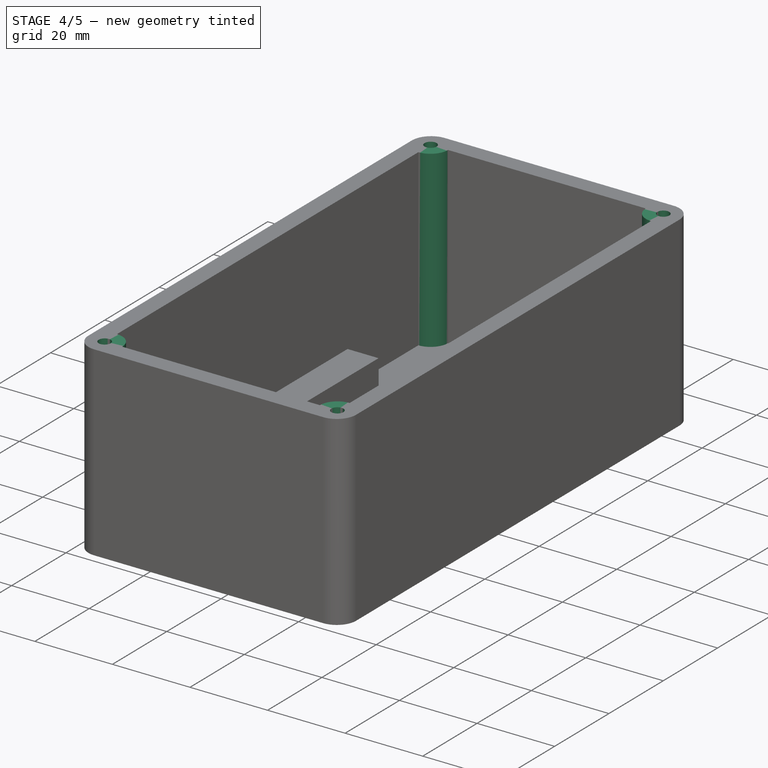
[diagram: stage 4 of 5 — iso view after this stage's code; geometry added in this stage tinted green]
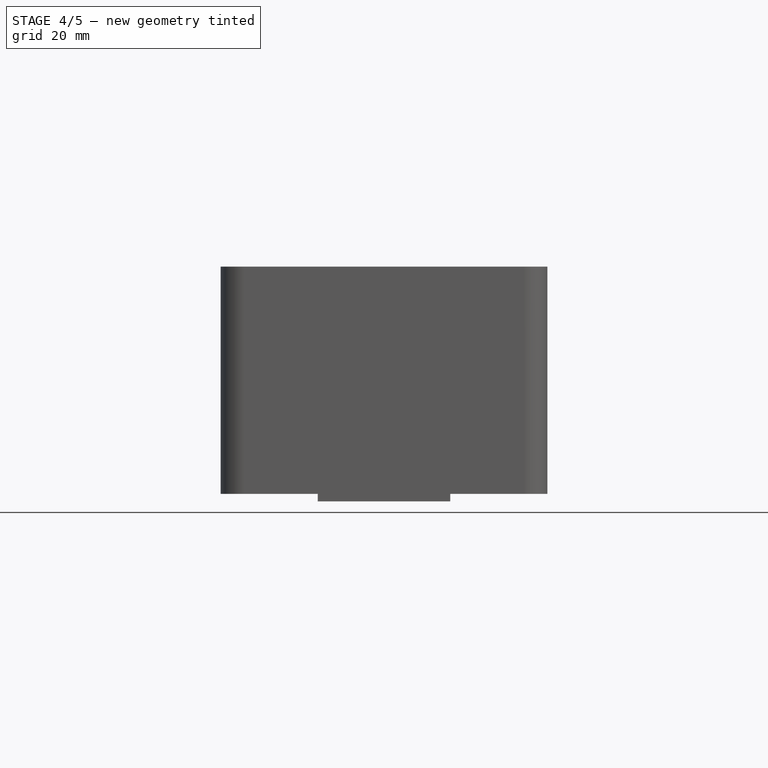
[diagram: stage 4 of 5 — front view after this stage's code; geometry added in this stage tinted green]
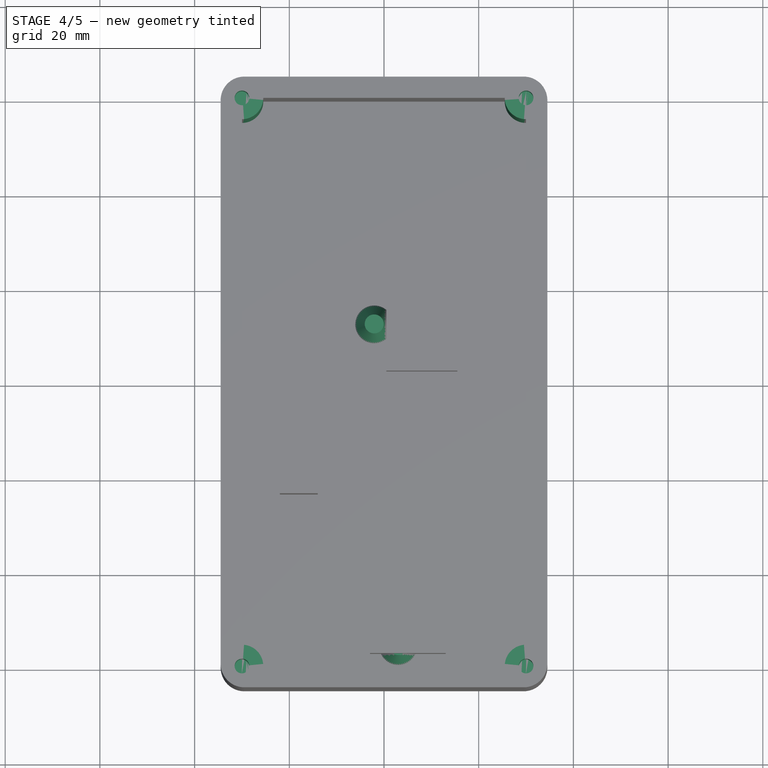
[diagram: stage 4 of 5 — top view after this stage's code; geometry added in this stage tinted green]
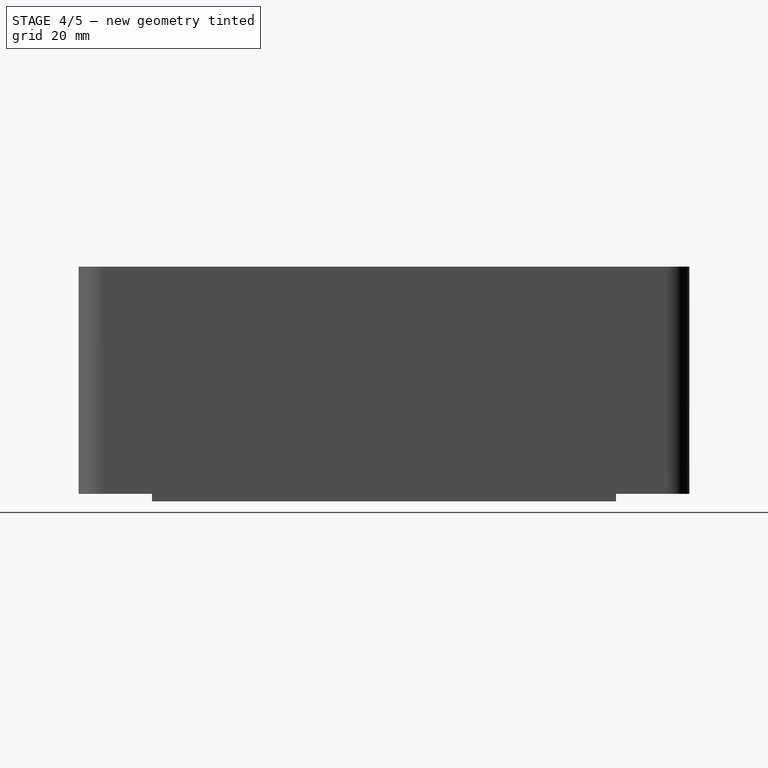
[diagram: stage 4 of 5 — right view after this stage's code; geometry added in this stage tinted green]
FEATURE [Sketcher::SketchObject] Sketch004
  FullyConstrained = true
  MapMode = 5
  Placement = pos=(0,0,48) rot=(0,0,1;0rad)
  Support = -> [DatumPlane004]
  expr: .Constraints.height = Variables.inner_height
  expr: .Constraints.width = Variables.inner_width
  expr: Constraints[41] = Variables.wall_thickness
  sketch-geometry (16):
    g0: LineSegment StartX=-30 StartY=60 StartZ=0 EndX=30 EndY=60 EndZ=0
    g1: LineSegment StartX=30 StartY=60 StartZ=0 EndX=30 EndY=-60 EndZ=0
    g2: LineSegment StartX=30 StartY=-60 StartZ=0 EndX=-30 EndY=-60 EndZ=0
    g3: LineSegment StartX=-30 StartY=-60 StartZ=0 EndX=-30 EndY=60 EndZ=0
    g4: ArcOfCircle CenterX=-30 CenterY=60 CenterZ=0 NormalX=0 NormalY=0 NormalZ=1 AngleXU=0 Radius=4.5 StartAngle=4.71239 EndAngle=6.28319
    g5: LineSegment StartX=-30 StartY=60 StartZ=0 EndX=-30 EndY=55.5 EndZ=0
    g6: LineSegment StartX=-30 StartY=60 StartZ=0 EndX=-25.5 EndY=60 EndZ=0
    g7: ArcOfCircle CenterX=30 CenterY=60 CenterZ=0 NormalX=0 NormalY=0 NormalZ=1 AngleXU=0 Radius=4.5 StartAngle=3.14159 EndAngle=4.71239
    g8: ArcOfCircle CenterX=30 CenterY=-60 CenterZ=0 NormalX=0 NormalY=0 NormalZ=1 AngleXU=0 Radius=4.5 StartAngle=1.5708 EndAngle=3.14159
    g9: ArcOfCircle CenterX=-30 CenterY=-60 CenterZ=0 NormalX=0 NormalY=0 NormalZ=1 AngleXU=0 Radius=4.5 StartAngle=7e-16 EndAngle=1.5708
    g10: LineSegment StartX=-30 StartY=-55.5 StartZ=0 EndX=-30 EndY=-60 EndZ=0
    g11: LineSegment StartX=-30 StartY=-60 StartZ=0 EndX=-25.5 EndY=-60 EndZ=0
    g12: LineSegment StartX=30 StartY=-55.5 StartZ=0 EndX=30 EndY=-60 EndZ=0
    g13: LineSegment StartX=30 StartY=-60 StartZ=0 EndX=25.5 EndY=-60 EndZ=0
    g14: LineSegment StartX=25.5 StartY=60 StartZ=0 EndX=30 EndY=60 EndZ=0
    g15: LineSegment StartX=30 StartY=60 StartZ=0 EndX=30 EndY=55.5 EndZ=0
  constraints (42):
    c: Coincident(g0,g1)
    c: Coincident(g1,g2)
    c: Coincident(g2,g3)
    c: Coincident(g3,g0)
    c: Horizontal(g2)
    c: Vertical(g3)
    c: Symmetric(g0,g0,g-2)
    c: Symmetric(g0,g1,g-1)
    c: DistanceX(g0,g0) = 60  'width'
    c: DistanceY(g1,g1) = 120  'height'
    c: Coincident(g4,g0)
    c: PointOnObject(g4,g0)
    c: PointOnObject(g4,g3)
    c: Coincident(g5,g4)
    c: Coincident(g5,g4)
    c: Coincident(g6,g4)
    c: Coincident(g6,g4)
    c: Coincident(g7,g0)
    c: PointOnObject(g7,g1)
    c: PointOnObject(g7,g0)
    c: Coincident(g8,g1)
    c: PointOnObject(g8,g1)
    c: PointOnObject(g8,g2)
    c: Coincident(g9,g2)
    c: PointOnObject(g9,g3)
    c: PointOnObject(g9,g2)
    c: Coincident(g10,g9)
    c: Coincident(g10,g9)
    c: Coincident(g11,g9)
    c: Coincident(g11,g9)
    c: Coincident(g12,g8)
    c: Coincident(g12,g8)
    c: Coincident(g13,g8)
    c: Coincident(g13,g8)
    c: Coincident(g14,g7)
    c: Coincident(g14,g7)
    c: Coincident(g15,g7)
    c: Coincident(g15,g7)
    c: Equal(g4,g7)
    c: Equal(g7,g8)
    c: Equal(g8,g9)
    c: Radius(g9) = 4.5
FEATURE [PartDesign::Pad] Pad002  label="Box Inner Mounting Hole Supports"
  BaseFeature = -> Pocket001
  Direction = (0,0,1)
  Length = 10
  Length2 = 10
  Profile = -> Sketch004
  ReferenceAxis = -> Sketch004 [N_Axis]
  Type = 3
  UpToFace = -> DatumPlane003
FEATURE [Sketcher::SketchObject] Sketch005
  FullyConstrained = true
  MapMode = 5
  Placement = pos=(0,0,48) rot=(0,0,1;0rad)
  Support = -> [DatumPlane004]
  expr: .Constraints.height = Variables.inner_height
  expr: .Constraints.width = Variables.inner_width
  expr: Constraints[17] = Variables.box_mounting_hole_diameter
  sketch-geometry (8):
    g0: LineSegment StartX=-30 StartY=60 StartZ=0 EndX=30 EndY=60 EndZ=0
    g1: LineSegment StartX=30 StartY=60 StartZ=0 EndX=30 EndY=-60 EndZ=0
    g2: LineSegment StartX=30 StartY=-60 StartZ=0 EndX=-30 EndY=-60 EndZ=0
    g3: LineSegment StartX=-30 StartY=-60 StartZ=0 EndX=-30 EndY=60 EndZ=0
    g4: Circle CenterX=-30 CenterY=60 CenterZ=0 NormalX=0 NormalY=0 NormalZ=1 AngleXU=0 Radius=1.55
    g5: Circle CenterX=30 CenterY=60 CenterZ=0 NormalX=0 NormalY=0 NormalZ=1 AngleXU=0 Radius=1.55
    g6: Circle CenterX=30 CenterY=-60 CenterZ=0 NormalX=0 NormalY=0 NormalZ=1 AngleXU=0 Radius=1.55
    g7: Circle CenterX=-30 CenterY=-60 CenterZ=0 NormalX=0 NormalY=0 NormalZ=1 AngleXU=0 Radius=1.55
  constraints (18):
    c: Coincident(g0,g1)
    c: Coincident(g1,g2)
    c: Coincident(g2,g3)
    c: Coincident(g3,g0)
    c: Horizontal(g2)
    c: Vertical(g3)
    c: Coincident(g4,g0)
    c: Coincident(g5,g0)
    c: Coincident(g6,g1)
    c: Coincident(g7,g2)
    c: Symmetric(g4,g5,g-2)
    c: Symmetric(g5,g6,g-1)
    c: DistanceX(g0,g0) = 60  'width'
    c: DistanceY(g1,g1) = 120  'height'
    c: Equal(g4,g5)
    c: Equal(g5,g6)
    c: Equal(g6,g7)
    c: Diameter(g7) = 3.1
FEATURE [PartDesign::Plane] DatumPlane005  label="Box Mounting Hole Depth"
  AttachmentOffset = pos=(0,0,-10) rot=(0,0,1;0rad)
  Length = 87.869
  MapMode = 5
  Placement = pos=(0,0,38) rot=(0,0,1;0rad)
  ResizeMode = 0
  Support = -> [DatumPlane004]
  Width = 147.869
  expr: .AttachmentOffset.Base.z = -Variables.box_mounting_hole_depth
FEATURE [PartDesign::Pocket] Pocket002  label="Box Mounting Holes"
  BaseFeature = -> Pad002
  Direction = (0,0,-1)
  Length = 0
  Length2 = 5
  Profile = -> Sketch005
  ReferenceAxis = -> Sketch005 [N_Axis]
  Type = 3
  UpToFace = -> DatumPlane005 [Plane]
FEATURE [PartDesign::CoordinateSystem] Local_CS002  label="Olimex ESP32-POE-ISO Lower Mounting Hole Bottom Body"
  AttacherType = Attacher::AttachEngine3D
  MapMode = 45
  Placement = pos=(-6.36,-46.27,-1.6) rot=(0,0,1;2.1e-05rad)
  Support = -> [Pad004]
FEATURE [PartDesign::Body] PCB  label="Olimex ESP32-POE-ISO Body"
  Group = -> [Sketch006,Pad003,Sketch007,Pocket003,Sketch008,Pad004,Local_CS002]
  Origin = -> Origin006
  Tip = -> Pad004
FEATURE [PartDesign::CoordinateSystem] LCS_1  label="Olimex ESP32-POE-ISO Lower Mounting Hole Bottom"
  AttacherType = Attacher::AttachEngine3D
  MapMode = 5
  Placement = pos=(-6.36,-46.27,-1.6) rot=(0,0,1;2.1e-05rad)
  Support = -> [Local_CS002]
FEATURE [PartDesign::Point] DatumPoint  label="Box Body Olimex Board Lower Mounting Hole Position"
  AttacherType = Attacher::AttachEnginePoint
  AttachmentOffset = pos=(3,-55,0) rot=(0,0,1;0rad)
  MapMode = 32
  Placement = pos=(3,-55,3) rot=(0,0,1;0rad)
  Support = -> [DatumPlane003]
FEATURE [PartDesign::AdditiveCone] Cone  label="Box Body Olimex Board Lower Mounting Hole Standoff"
  Angle = 360
  AttacherType = Attacher::AttachEngine3D
  BaseFeature = -> Pocket002
  Height = 6
  MapMode = 1
  Placement = pos=(3,-55,3) rot=(0,0,1;0rad)
  Radius1 = 4
  Radius2 = 2
  Support = -> [DatumPoint]
FEATURE [PartDesign::Point] DatumPoint001  label="Box Body Olimex Board Upper Left Mounting Hole Position"
  AttacherType = Attacher::AttachEnginePoint
  AttachmentOffset = pos=(-5.07,67.94,0) rot=(0,0,1;0rad)
  MapMode = 39
  Placement = pos=(-2.07,12.94,3) rot=(0,0,1;0rad)
  Support = -> [DatumPoint]
  expr: .AttachmentOffset.Base.x = <<Sketch007>>.Constraints.x_upper_left - <<Sketch007>>.Constraints.x_lower
  expr: .AttachmentOffset.Base.y = <<Sketch007>>.Constraints.y_upper - <<Sketch007>>.Constraints.y_lower
FEATURE [PartDesign::AdditiveCone] Cone001  label="Box Body Olimex Board Upper Left Mounting Hole Standoff"
  Angle = 360
  AttacherType = Attacher::AttachEngine3D
  BaseFeature = -> Cone
  Height = 6
  MapMode = 1
  Placement = pos=(-2.07,12.94,3) rot=(0,0,1;0rad)
  Radius1 = 4
  Radius2 = 2
  Support = -> [DatumPoint001]
  expr: Height = <<Box Body Olimex Board Lower Mounting Hole Standoff>>.Height
  expr: Radius1 = <<Box Body Olimex Board Lower Mounting Hole Standoff>>.Radius1
  expr: Radius2 = <<Box Body Olimex Board Lower Mounting Hole Standoff>>.Radius2
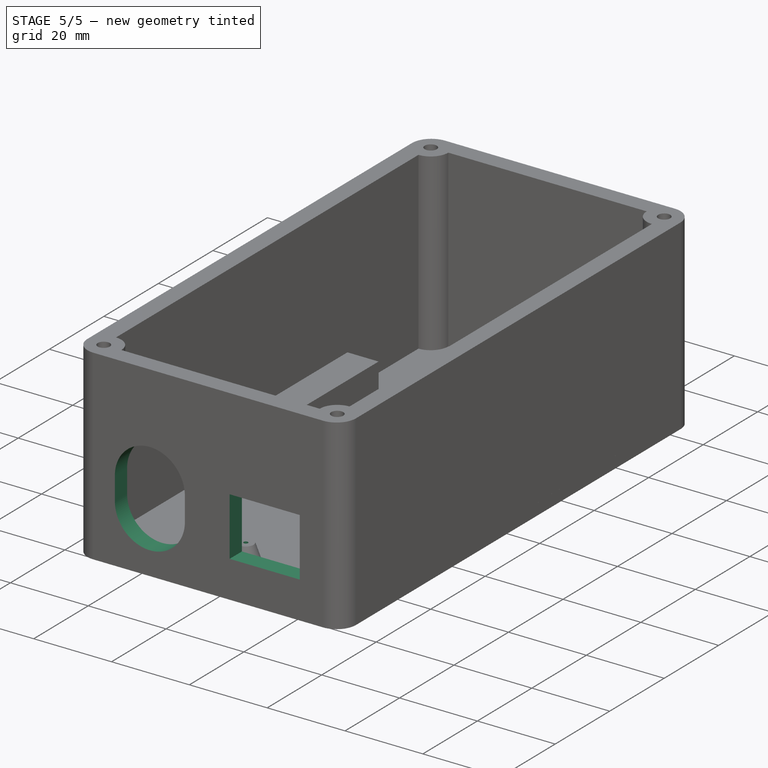
[diagram: stage 5 of 5 — iso view after this stage's code; geometry added in this stage tinted green]
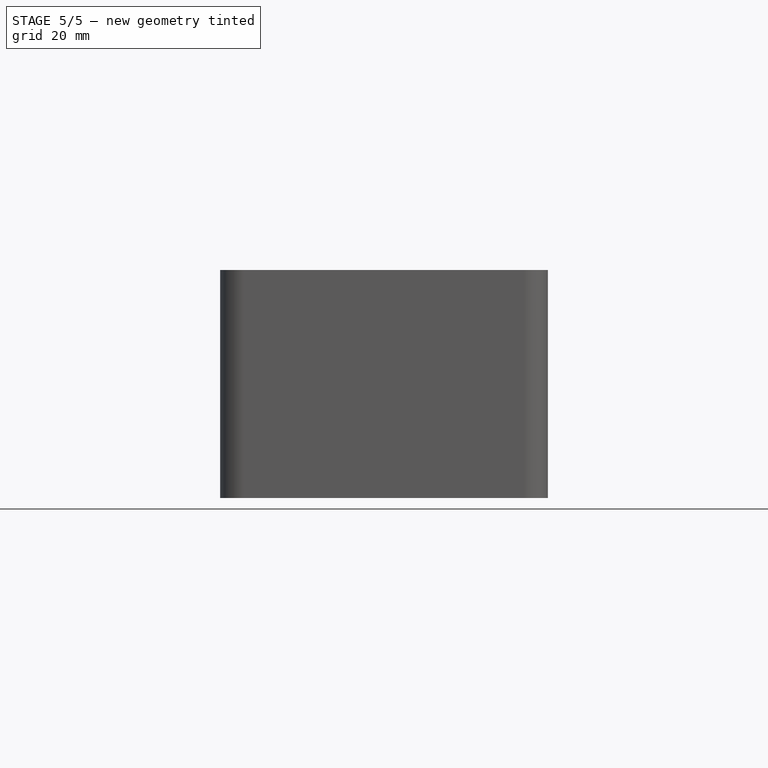
[diagram: stage 5 of 5 — front view after this stage's code; geometry added in this stage tinted green]
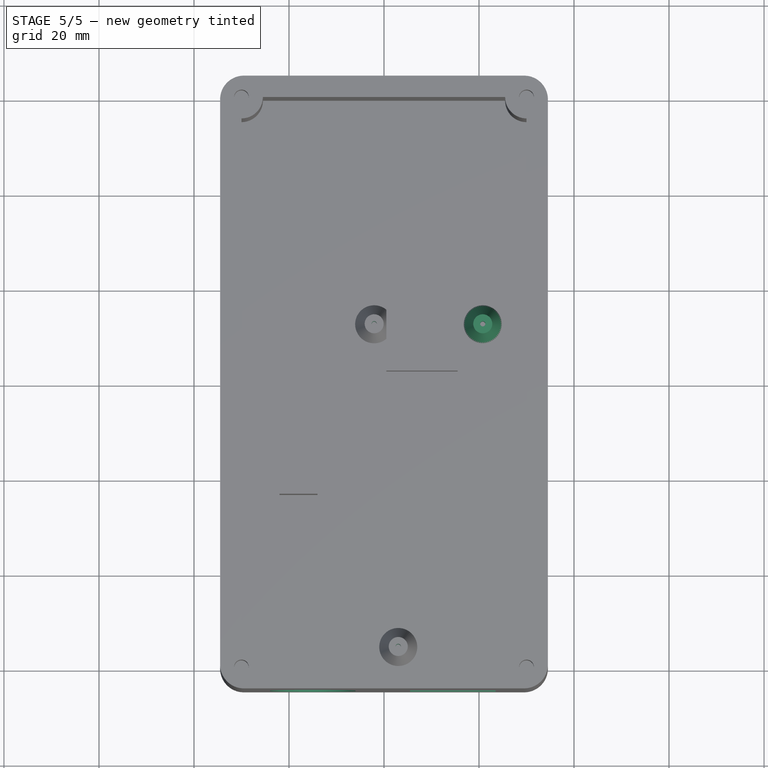
[diagram: stage 5 of 5 — top view after this stage's code; geometry added in this stage tinted green]
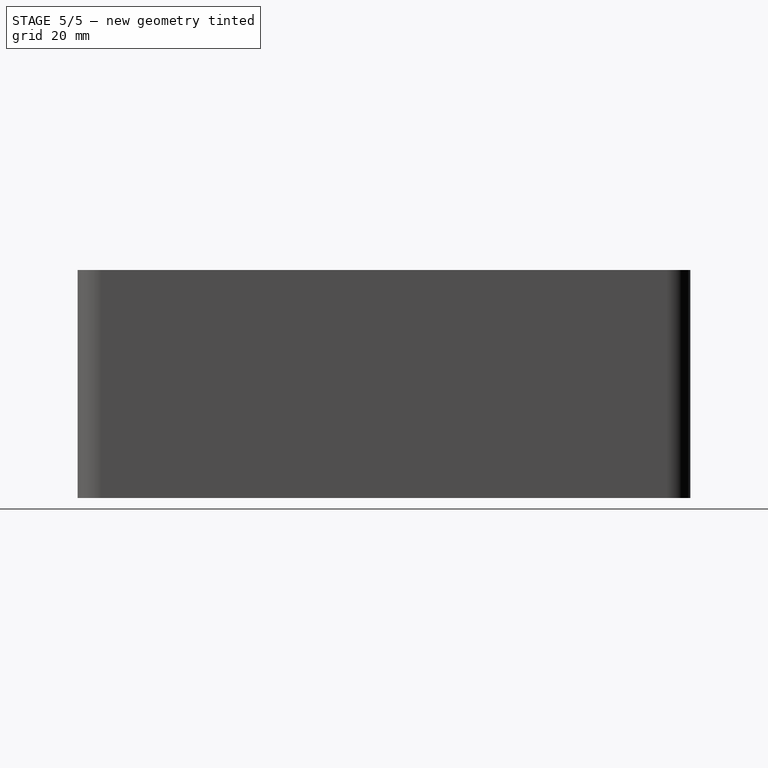
[diagram: stage 5 of 5 — right view after this stage's code; geometry added in this stage tinted green]
FEATURE [PartDesign::Point] DatumPoint002  label="Box Body Olimex Board Upper Right Mounting Hole Position"
  AttacherType = Attacher::AttachEnginePoint
  AttachmentOffset = pos=(17.79,67.94,0) rot=(0,0,1;0rad)
  MapMode = 39
  Placement = pos=(20.79,12.94,3) rot=(0,0,1;0rad)
  Support = -> [DatumPoint]
  expr: .AttachmentOffset.Base.x = <<Sketch007>>.Constraints.x_upper_right - <<Sketch007>>.Constraints.x_lower
  expr: .AttachmentOffset.Base.y = <<Sketch007>>.Constraints.y_upper - <<Sketch007>>.Constraints.y_lower
FEATURE [PartDesign::AdditiveCone] Cone002  label="Box Body Olimex Board Upper Right Mounting Hole Standoff"
  Angle = 360
  AttacherType = Attacher::AttachEngine3D
  BaseFeature = -> Cone001
  Height = 6
  MapMode = 1
  Placement = pos=(20.79,12.94,3) rot=(0,0,1;0rad)
  Radius1 = 4
  Radius2 = 2
  Support = -> [DatumPoint002]
  expr: Height = <<Box Body Olimex Board Lower Mounting Hole Standoff>>.Height
  expr: Radius1 = <<Box Body Olimex Board Lower Mounting Hole Standoff>>.Radius1
  expr: Radius2 = <<Box Body Olimex Board Lower Mounting Hole Standoff>>.Radius2
FEATURE [PartDesign::Plane] DatumPlane014  label="Box Body Olimes Board Standoff Height"
  AttachmentOffset = pos=(0,0,6) rot=(0,0,1;0rad)
  Length = 87.869
  MapMode = 5
  Placement = pos=(0,0,9) rot=(0,0,1;0rad)
  ResizeMode = 0
  Support = -> [DatumPlane003]
  Width = 147.869
  expr: .AttachmentOffset.Base.z = <<Box Body Olimex Board Lower Mounting Hole Standoff>>.Height
FEATURE [PartDesign::Point] DatumPoint003  label="Box Body Olimex Board Lower Mounting Hole Position Top"
  AttacherType = Attacher::AttachEnginePoint
  MapMode = 40
  Placement = pos=(3,-55,9) rot=(0,0,1;0rad)
  Support = -> [DatumPlane014,DatumPoint]
FEATURE [PartDesign::Point] DatumPoint004  label="Box Body Olimex Board Upper Left Mounting Hole Position Top"
  AttacherType = Attacher::AttachEnginePoint
  MapMode = 40
  Placement = pos=(-2.07,12.94,9) rot=(0,0,1;0rad)
  Support = -> [DatumPlane014,DatumPoint001]
FEATURE [PartDesign::Point] DatumPoint005  label="Box Body Olimex Board Upper Right Mounting Hole Position Top"
  AttacherType = Attacher::AttachEnginePoint
  MapMode = 40
  Placement = pos=(20.79,12.94,9) rot=(0,0,1;0rad)
  Support = -> [DatumPlane014,DatumPoint002]
FEATURE [Sketcher::SketchObject] Sketch009
  ExternalGeometry = -> [DatumPoint004,DatumPoint005,DatumPoint003]
  FullyConstrained = true
  MapMode = 5
  Placement = pos=(0,0,9) rot=(0,0,1;0rad)
  Support = -> [DatumPlane014]
  sketch-geometry (3):
    g0: Circle CenterX=-2.07 CenterY=12.94 CenterZ=0 NormalX=0 NormalY=0 NormalZ=1 AngleXU=0 Radius=0.55
    g1: Circle CenterX=20.79 CenterY=12.94 CenterZ=0 NormalX=0 NormalY=0 NormalZ=1 AngleXU=0 Radius=0.55
    g2: Circle CenterX=3 CenterY=-55 CenterZ=0 NormalX=0 NormalY=0 NormalZ=1 AngleXU=0 Radius=0.55
  constraints (6):
    c: Coincident(g0,g-3)
    c: Coincident(g2,g-5)
    c: Coincident(g1,g-4)
    c: Equal(g0,g1)
    c: Equal(g1,g2)
    c: Diameter(g2) = 1.1  'diameter'
FEATURE [PartDesign::Plane] DatumPlane015  label="Box Body Olimex Board Mounting Holes Depth"
  AttachmentOffset = pos=(0,0,-1) rot=(0,0,1;0rad)
  Length = 87.869
  MapMode = 5
  Placement = pos=(0,0,2) rot=(0,0,1;0rad)
  ResizeMode = 0
  Support = -> [DatumPlane003]
  Width = 147.869
FEATURE [PartDesign::Pocket] Pocket004  label="Box Body Olimex Board Mounting Holes"
  BaseFeature = -> Cone002
  Direction = (0,0,-1)
  Length = 0
  Length2 = 5
  Placement = pos=(20.79,12.94,3) rot=(0,0,1;0rad)
  Profile = -> Sketch009
  ReferenceAxis = -> Sketch009 [N_Axis]
  Type = 3
  UpToFace = -> DatumPlane015 [Plane]
FEATURE [PartDesign::CoordinateSystem] Local_CS003  label="Box Body Olimex Board Lower Mounting Hole Position Top LCS Body"
  AttacherType = Attacher::AttachEngine3D
  MapMode = 1
  Placement = pos=(3,-55,9) rot=(0,0,1;0rad)
  Support = -> [DatumPoint003]
FEATURE [PartDesign::CoordinateSystem] Box_Body_Olimex_Board_Lower_Mounting_Hole_Position_Top_LCS  label="Box Body Olimex Board Lower Mounting Hole Position Top LCS"
  AttacherType = Attacher::AttachEngine3D
  MapMode = 5
  Placement = pos=(3,-55,9) rot=(0,0,1;0rad)
  Support = -> [Local_CS003]
FEATURE [App::Link] Olimex_ESP32_POE_ISO_Ass  label="Olimex ESP32-POE-ISO Ass"
  AttachedBy = #LCS_1
  AttachedTo = Box_Ass#Box_Body_Olimex_Board_Lower_Mounting_Hole_Position_Top_LCS
  LinkPlacement = pos=(9.36095,-8.73013,10.6) rot=(0,0,-1;2.1e-05rad)
  LinkedObject = -> Olimex_ESP32_POE_ISO
  Placement = pos=(9.36095,-8.73013,10.6) rot=(0,0,-1;2.1e-05rad)
  SolverId = Asm4EE
  expr: Placement = Box_Ass.Placement * Box_Body_Olimex_Board_Lower_Mounting_Hole_Position_Top_LCS.Placement * AttachmentOffset * LCS_1.Placement ^ -1
FEATURE [App::Part] Assembly
  AssemblyType = Part::Link
  Group = -> [LCS_Origin,Constraints,Variables,Configurations,Box_Ass,Lid_Ass,Olimex_ESP32_POE_ISO_Ass]
  Origin = -> Origin
  Type = Assembly
FEATURE [Sketcher::SketchObject] Sketch010
  FullyConstrained = true
  MapMode = 5
  Placement = pos=(0,-64.5,-1.43e-14) rot=(1,0,0;1.5708rad)
  Support = -> [DatumPlane008]
  expr: Constraints[8] = <<Sketch008>>.Constraints.rj45_width + 2mm
  expr: Constraints[9] = <<Olimex ESP32-POE-ISO RJ45>>.Length + 2mm
  sketch-geometry (8):
    g0: LineSegment StartX=5.5 StartY=24.5 StartZ=0 EndX=23.5 EndY=24.5 EndZ=0
    g1: LineSegment StartX=23.5 StartY=24.5 StartZ=0 EndX=23.5 EndY=9.5 EndZ=0
    g2: LineSegment StartX=23.5 StartY=9.5 StartZ=0 EndX=5.5 EndY=9.5 EndZ=0
    g3: LineSegment StartX=5.5 StartY=9.5 StartZ=0 EndX=5.5 EndY=24.5 EndZ=0
    g4: ArcOfCircle CenterX=-15 CenterY=21 CenterZ=0 NormalX=0 NormalY=0 NormalZ=1 AngleXU=0 Radius=9 StartAngle=5.1e-15 EndAngle=3.14159
    g5: ArcOfCircle CenterX=-15 CenterY=15 CenterZ=0 NormalX=0 NormalY=0 NormalZ=1 AngleXU=0 Radius=9 StartAngle=3.14159 EndAngle=6.28319
    g6: LineSegment StartX=-24 StartY=21 StartZ=0 EndX=-24 EndY=15 EndZ=0
    g7: LineSegment StartX=-6 StartY=15 StartZ=0 EndX=-6 EndY=21 EndZ=0
  constraints (22):
    c: Coincident(g0,g1)
    c: Coincident(g1,g2)
    c: Coincident(g2,g3)
    c: Coincident(g3,g0)
    c: Horizontal(g0)
    c: Horizontal(g2)
    c: Vertical(g1)
    c: Vertical(g3)
    c: DistanceX(g0,g0) = 18
    c: DistanceY(g1,g1) = 15
    c: DistanceX(g-1,g2) = 5.5
    c: DistanceY(g-1,g2) = 9.5
    c: Tangent(g4,g6) = -1.5708
    c: Tangent(g6,g5) = -1.5708
    c: Tangent(g5,g7) = -1.5708
    c: Tangent(g7,g4) = -1.5708
    c: Equal(g4,g5)
    c: Vertical(g6)
    c: DistanceX(g5,g-1) = 15
    c: Radius(g4) = 9
    c: DistanceY(g-1,g5) = 15
    c: DistanceY(g5,g4) = 6
FEATURE [PartDesign::Pocket] Pocket005  label="Box Body Olimex Board Lower Holes"
  BaseFeature = -> Pocket004
  Direction = (0,1,2e-16)
  Length = 0
  Length2 = 5
  Placement = pos=(20.79,12.94,3) rot=(0,0,1;0rad)
  Profile = -> Sketch010
  ReferenceAxis = -> Sketch010 [N_Axis]
  Type = 3
  UpToFace = -> DatumPlane006 [Plane]
FEATURE [Sketcher::SketchObject] Sketch013
  FullyConstrained = true
  MapMode = 5
  Placement = pos=(0,0,3) rot=(0,0,1;0rad)
  Support = -> [DatumPlane003]
  sketch-geometry (1):
    g0: Circle CenterX=-20 CenterY=50 CenterZ=0 NormalX=0 NormalY=0 NormalZ=1 AngleXU=0 Radius=2.5
  constraints (3):
    c: Diameter(g0) = 5
    c: DistanceX(g0,g-1) = 20
    c: DistanceY(g-1,g0) = 50
FEATURE [PartDesign::Pocket] Pocket007  label="Box Body Wall Mounting Holes"
  BaseFeature = -> Pocket005
  Direction = (0,0,-1)
  Length = 0
  Length2 = 5
  Placement = pos=(20.79,12.94,3) rot=(0,0,1;0rad)
  Profile = -> Sketch013
  ReferenceAxis = -> Sketch013 [N_Axis]
  Type = 3
  UpToFace = -> DatumPlane002 [Plane]
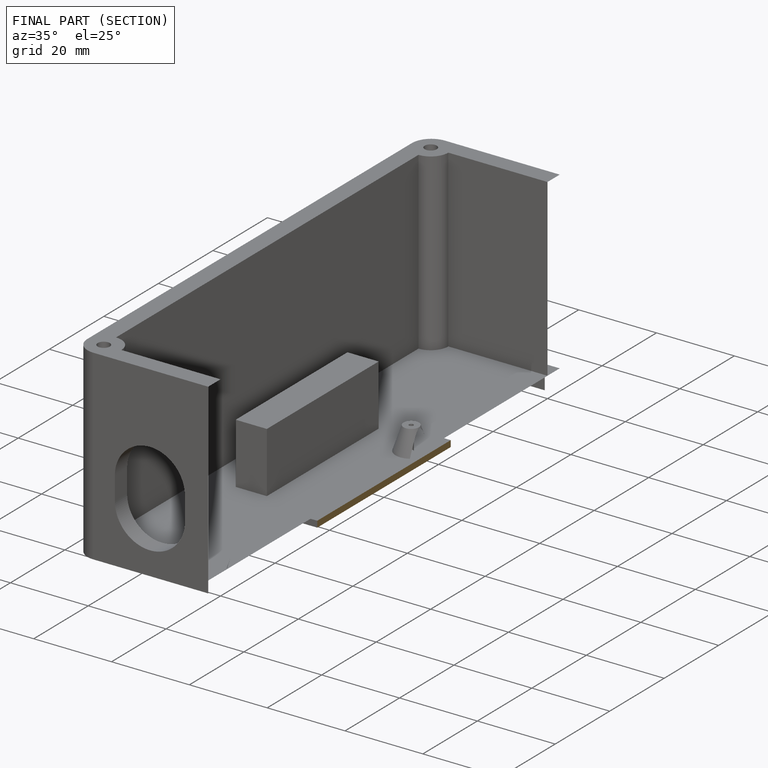
[diagram: finished part — half-section view (interior)]
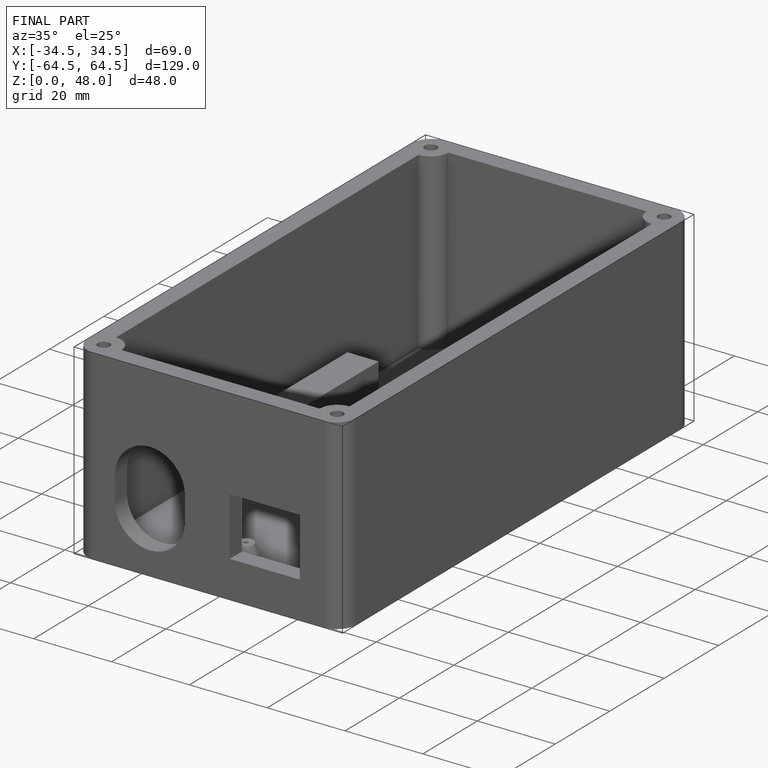
[diagram: finished part — iso view with bounding-box wireframe]
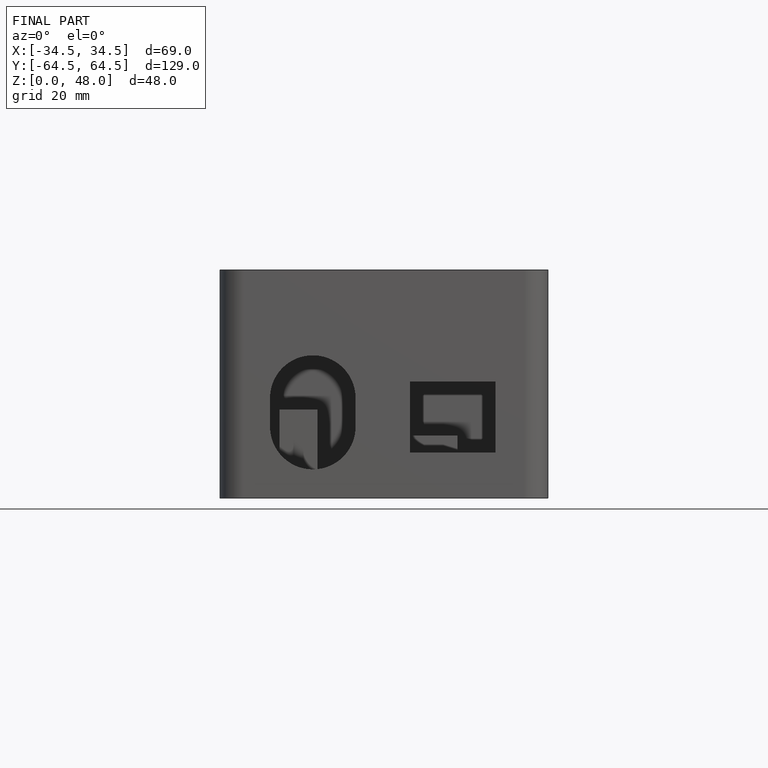
[diagram: finished part — front view with bounding-box wireframe]
